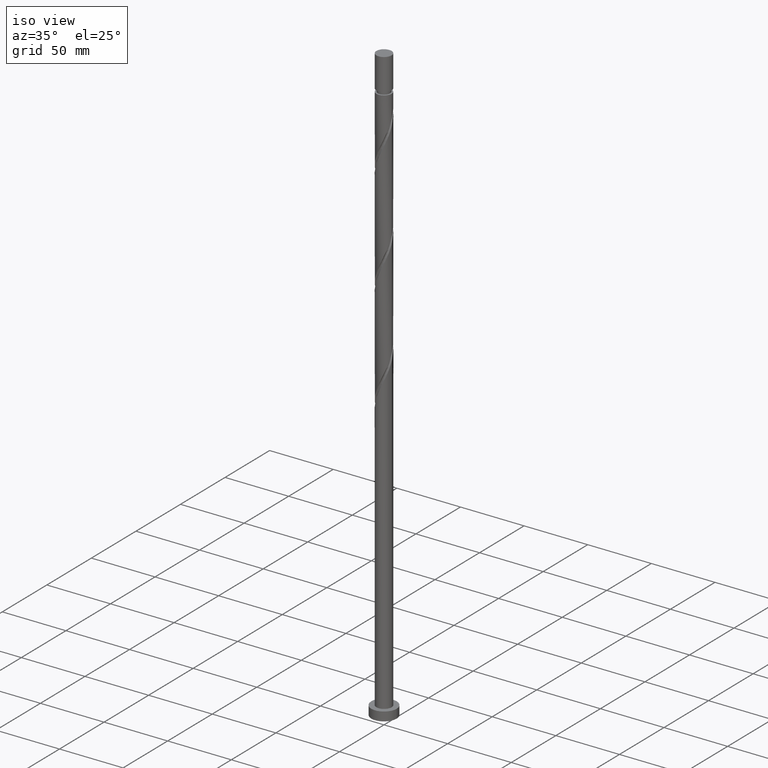
[diagram: clean part render]
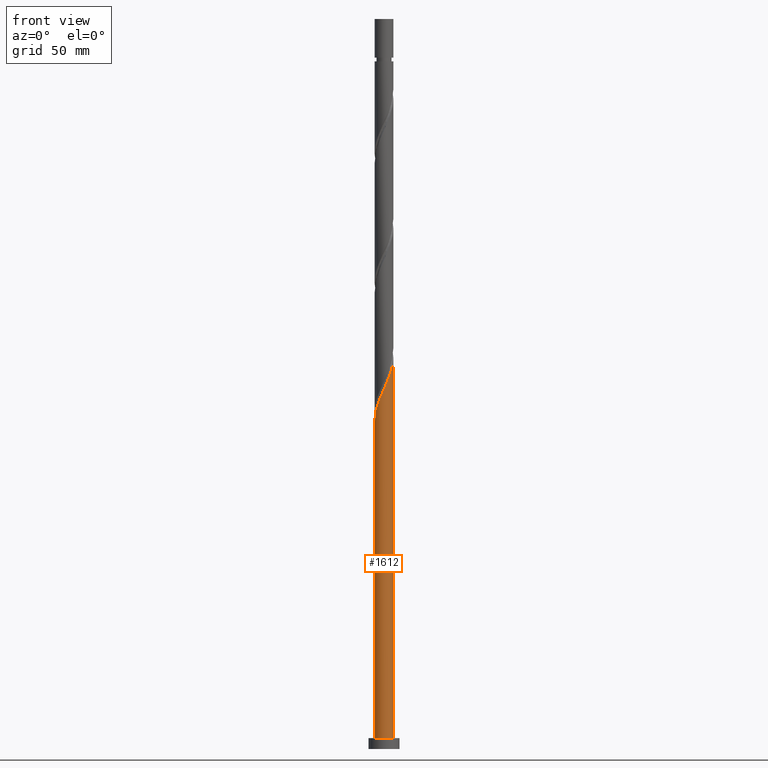
[diagram: tour spotlight — one face highlighted and labeled with its STEP entity id]
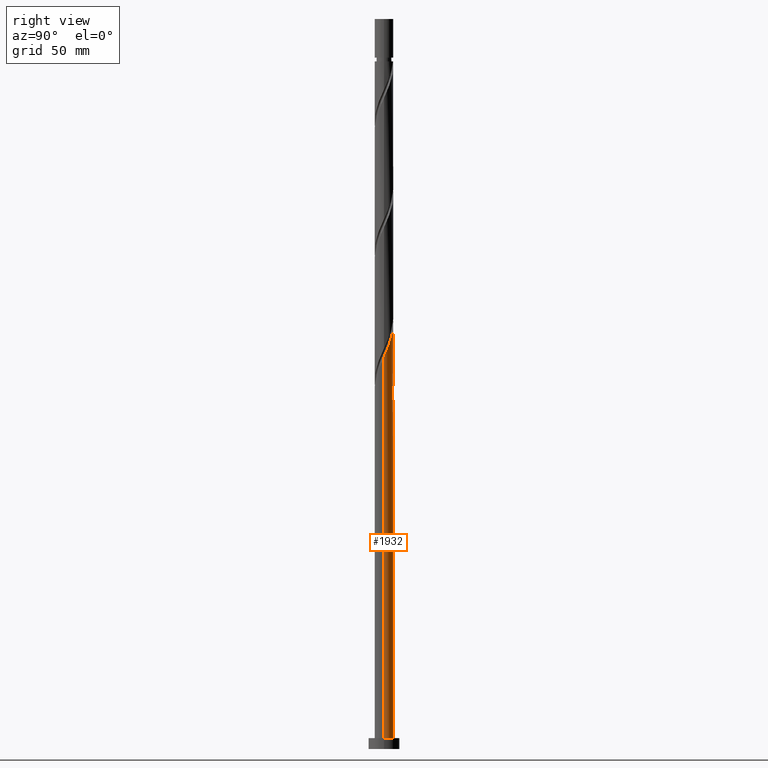
[diagram: tour spotlight — one face highlighted and labeled with its STEP entity id]
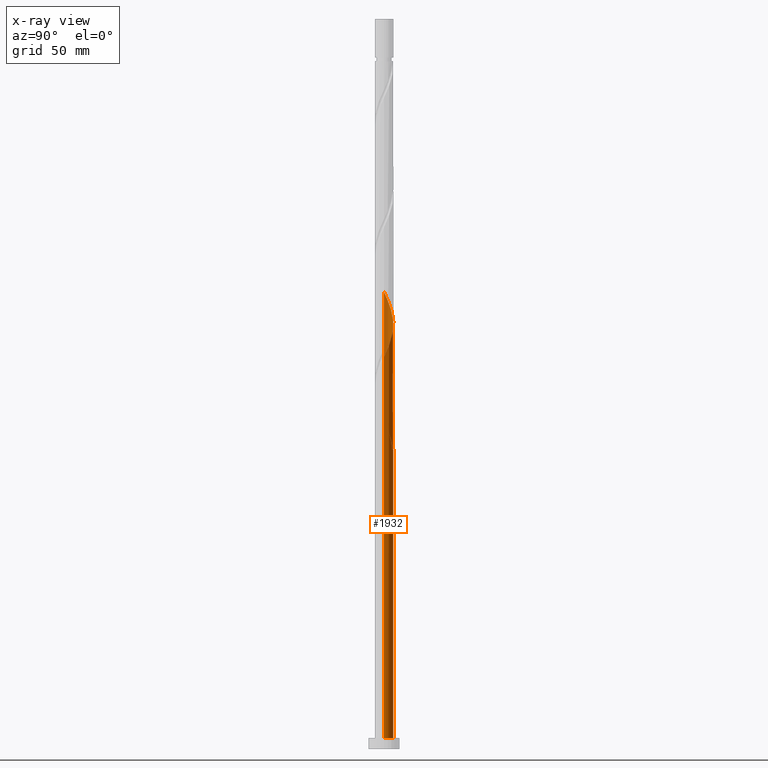
[diagram: x-ray of the same camera — body ghosted, this tour face saturated]
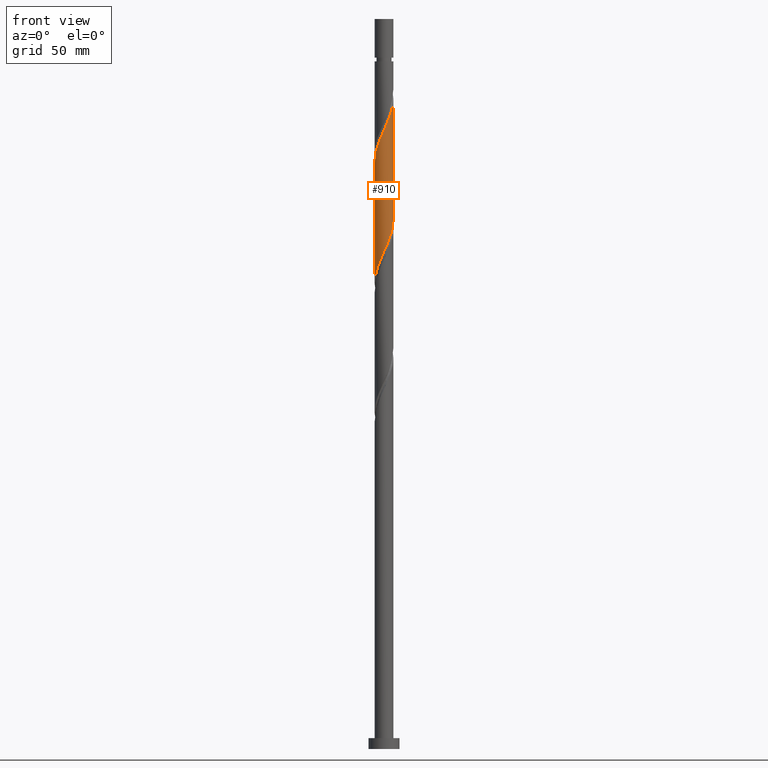
[diagram: tour spotlight — one face highlighted and labeled with its STEP entity id]
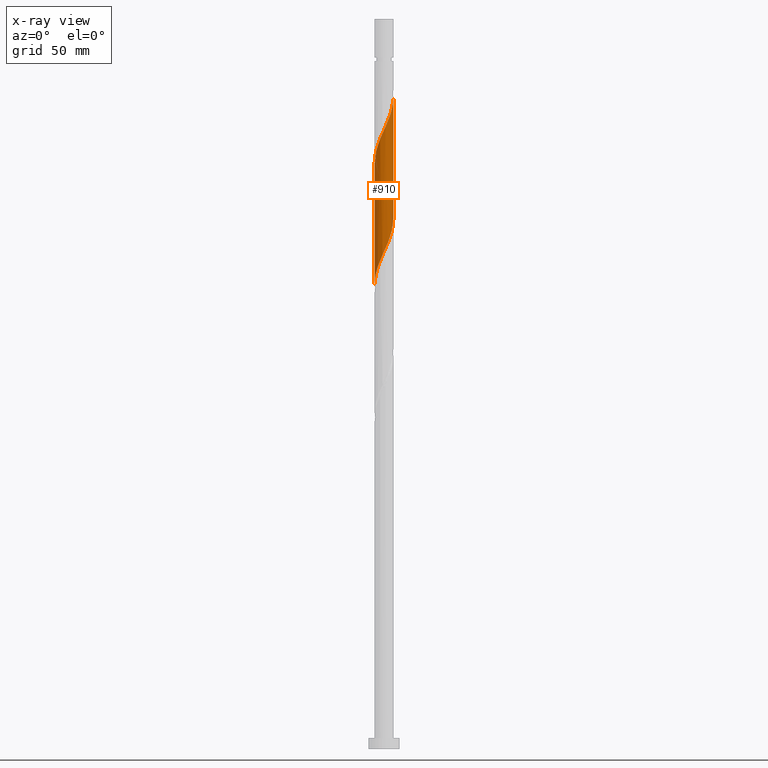
[diagram: x-ray of the same camera — body ghosted, this tour face saturated]
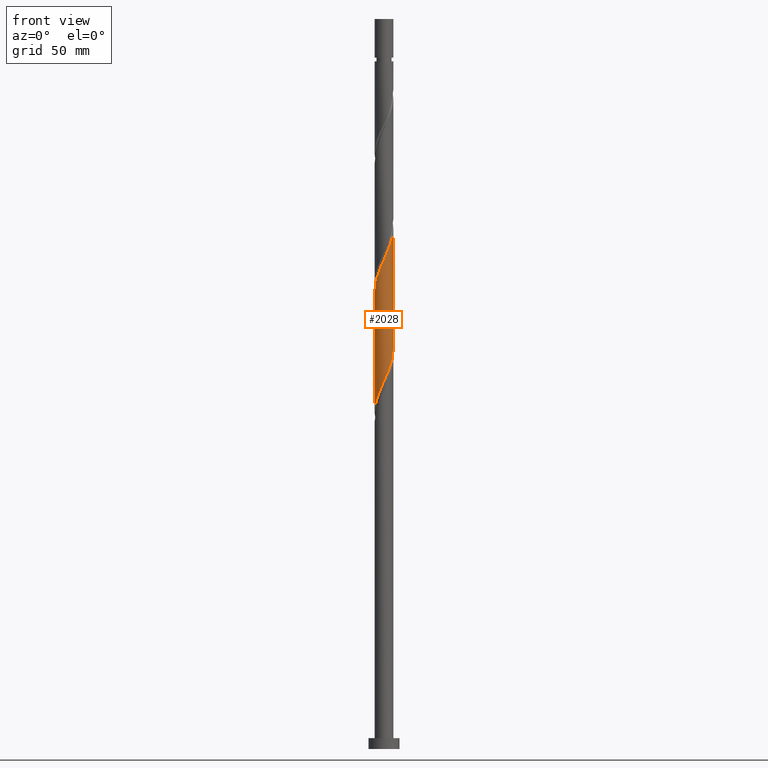
[diagram: tour spotlight — one face highlighted and labeled with its STEP entity id]
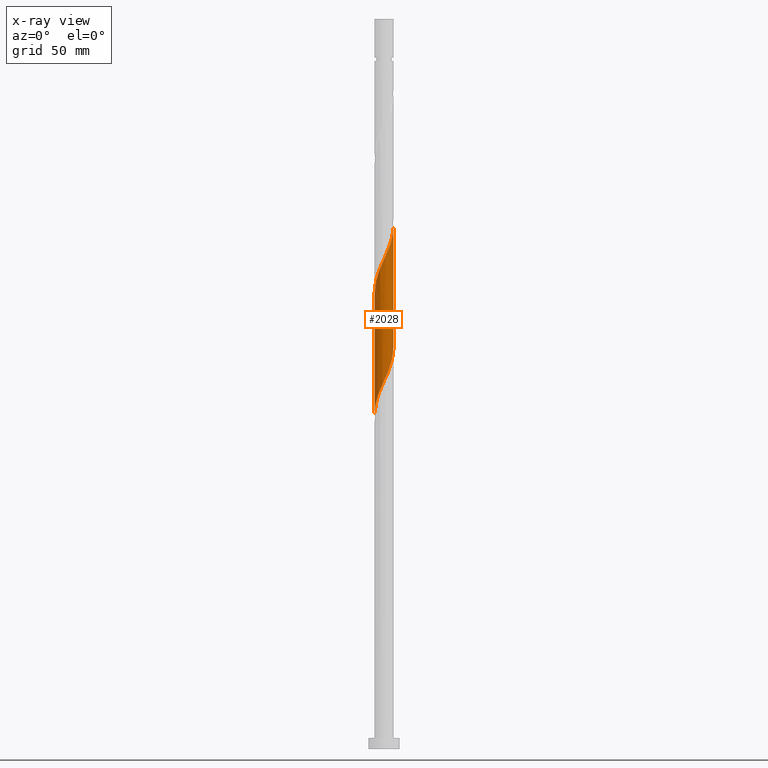
[diagram: x-ray of the same camera — body ghosted, this tour face saturated]
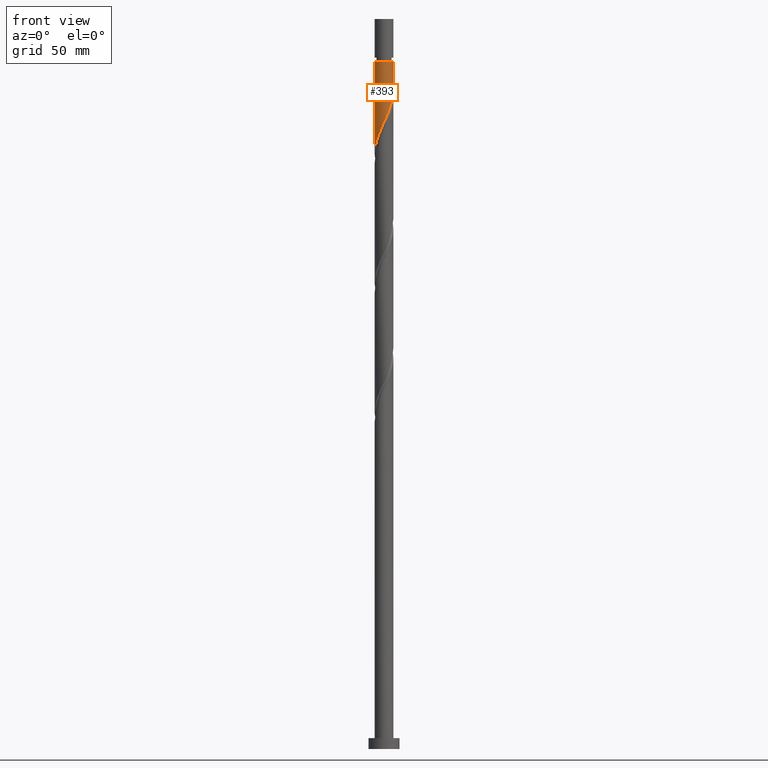
[diagram: tour spotlight — one face highlighted and labeled with its STEP entity id]
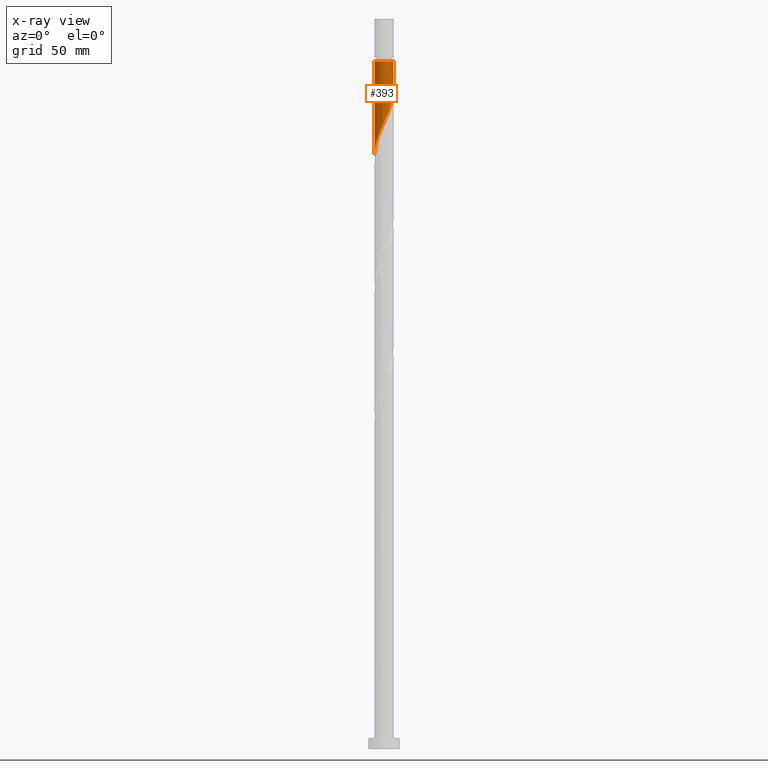
[diagram: x-ray of the same camera — body ghosted, this tour face saturated]
A machine part: a face-by-face anatomy tour. The part has 21 B-rep faces; the first image is the clean iso view, then the 5 largest visible faces are spotlighted one at a time (largest first), each with its STEP entity span.

Face 1 — front view, entity #1612. In plain terms, the highlighted cylindrical surface (edge-blend (fillet) strip) has radius 6 mm, axis along (-0, -0, -1).
Definition (entity closure, byte-faithful):
#84 = EDGE_CURVE ( 'NONE', #1246, #1939, #1824, .T. ) ;
#107 = AXIS2_PLACEMENT_3D ( 'NONE', #314, #966, #153 ) ;
#143 = CARTESIAN_POINT ( 'NONE',  ( 2.318173932455210640, -5.534082545362442929, 236.9834610473268697 ) ) ;
#153 = DIRECTION ( 'NONE',  ( -1.000000000000000000, 0.000000000000000000, 0.000000000000000000 ) ) ;
#159 = CARTESIAN_POINT ( 'NONE',  ( 4.675710161127276443, -3.806173212611419387, 243.4938777139934416 ) ) ;
#167 = ORIENTED_EDGE ( 'NONE', *, *, #1144, .F. ) ;
#183 = EDGE_LOOP ( 'NONE', ( #1686, #167, #790, #1086 ) ) ;
#260 = CARTESIAN_POINT ( 'NONE',  ( 0.000000000000000000, 0.000000000000000000, 7.000000000000000000 ) ) ;
#282 = CARTESIAN_POINT ( 'NONE',  ( -1.147080348408327177, -5.889329900276901064, 229.1709610473267844 ) ) ;
#312 = CARTESIAN_POINT ( 'NONE',  ( -6.000000000000010658, -0.01195592024555443104, 210.9154509571805249 ) ) ;
#314 = CARTESIAN_POINT ( 'NONE',  ( 0.000000000000000000, 0.000000000000000000, 470.0000000000000568 ) ) ;
#319 = CARTESIAN_POINT ( 'NONE',  ( -4.975493402055846559, -3.353276816205137401, 218.7542943806601272 ) ) ;
#373 = CARTESIAN_POINT ( 'NONE',  ( 6.000000000000000888, 7.347880794884120722E-16, 470.0000000000000568 ) ) ;
#384 = DIRECTION ( 'NONE',  ( 0.000000000000000000, 0.000000000000000000, 1.000000000000000000 ) ) ;
#394 = CARTESIAN_POINT ( 'NONE',  ( 6.000000000000000888, 7.347880794884120722E-16, 7.000000000000000000 ) ) ;
#437 = CARTESIAN_POINT ( 'NONE',  ( -3.806173212611419387, -4.675710161127277331, 222.6605443806601556 ) ) ;
#450 = CARTESIAN_POINT ( 'NONE',  ( 3.843320143767927632, -4.645224462582758562, 240.8897110473268128 ) ) ;
#459 = CARTESIAN_POINT ( 'NONE',  ( 4.259515152447602482, -4.225698837597090751, 242.1917943806601841 ) ) ;
#468 = CARTESIAN_POINT ( 'NONE',  ( 6.000000000000010658, -0.5788788895738872231, 251.2797839639139568 ) ) ;
#609 = CARTESIAN_POINT ( 'NONE',  ( -6.000000000000008882, 7.468366578327162994E-15, 210.8890974026632534 ) ) ;
#637 = CARTESIAN_POINT ( 'NONE',  ( -5.305762341528934556, -2.863233488642342728, 217.4522110473267276 ) ) ;
#783 = CARTESIAN_POINT ( 'NONE',  ( 1.773114376268075221, -5.762402749195952190, 235.6813777139933563 ) ) ;
#790 = ORIENTED_EDGE ( 'NONE', *, *, #1398, .T. ) ;
#799 = CARTESIAN_POINT ( 'NONE',  ( -4.225698837597090751, -4.259515152447602482, 221.3584610473267560 ) ) ;
#836 = VERTEX_POINT ( 'NONE', #1964 ) ;
#877 =( BOUNDED_CURVE ( )  B_SPLINE_CURVE ( 2, ( #609, #312, #1257, #1276, #2092, #1748, #1574, #637, #319, #1771, #799, #437, #973, #935, #1765, #954, #282, #1593, #1904, #1613, #1283, #783, #143, #1429, #1921, #450, #459, #159, #1913, #1411, #1120, #2072, #2053, #468, #1248 ),
 .UNSPECIFIED., .F., .T. ) 
 B_SPLINE_CURVE_WITH_KNOTS ( ( 3, 2, 2, 2, 2, 2, 2, 2, 2, 2, 2, 2, 2, 2, 2, 2, 2, 3 ),
 ( 0.05452869021808707389, 0.05468750000000000000, 0.06250000000000000000, 0.07031250000000000000, 0.07812500000000000000, 0.08593750000000000000, 0.09375000000000000000, 0.1015625000000000000, 0.1093750000000000000, 0.1171875000000000000, 0.1250000000000000000, 0.1328125000000000000, 0.1406250000000000000, 0.1484375000000000000, 0.1562500000000000000, 0.1640625000000000000, 0.1718750000000000000, 0.1795286902180872612 ),
 .UNSPECIFIED. ) 
 CURVE ( )  GEOMETRIC_REPRESENTATION_ITEM ( )  RATIONAL_B_SPLINE_CURVE ( ( 0.9089165573359456740, 0.9090019243628505441, 0.9090909090909424783, 0.9047133878838486964, 0.9090909090909424783, 0.9047133878838486964, 0.9090909090909424783, 0.9047133878838486964, 0.9090909090909424783, 0.9047133878838486964, 0.9090909090909424783, 0.9047133878838486964, 0.9090909090909424783, 0.9047133878838486964, 0.9090909090909424783, 0.9047133878838486964, 0.9090909090909424783, 0.9047133878838486964, 0.9090909090909424783, 0.9047133878838486964, 0.9090909090909424783, 0.9047133878838486964, 0.9090909090909424783, 0.9047133878838486964, 0.9090909090909424783, 0.9047133878838486964, 0.9090909090909424783, 0.9047133878838486964, 0.9090909090909424783, 0.9047133878838486964, 0.9090909090909424783, 0.9047133878838486964, 0.9090909090909424783, 0.9048023726119404087, 0.9089165573359460071 ) ) 
 REPRESENTATION_ITEM ( '' )  );
#894 = LINE ( 'NONE', #2033, #963 ) ;
#935 = CARTESIAN_POINT ( 'NONE',  ( -2.820852860605950863, -5.328415259162975204, 225.2647110473268128 ) ) ;
#954 = CARTESIAN_POINT ( 'NONE',  ( -1.727128715119907287, -5.776352346998740117, 227.8688777139934416 ) ) ;
#963 = VECTOR ( 'NONE', #1367, 1000.000000000000000 ) ;
#966 = DIRECTION ( 'NONE',  ( -0.000000000000000000, -0.000000000000000000, -1.000000000000000000 ) ) ;
#973 = CARTESIAN_POINT ( 'NONE',  ( -3.313513036608686235, -5.002062710145123603, 223.9626277139935269 ) ) ;
#1028 = LINE ( 'NONE', #373, #1364 ) ;
#1086 = ORIENTED_EDGE ( 'NONE', *, *, #84, .T. ) ;
#1120 = CARTESIAN_POINT ( 'NONE',  ( 5.552383803080859437, -2.273990787862929519, 247.4001277139934984 ) ) ;
#1144 = EDGE_CURVE ( 'NONE', #1901, #836, #877, .T. ) ;
#1195 = DIRECTION ( 'NONE',  ( 1.000000000000000000, 0.000000000000000000, 0.000000000000000000 ) ) ;
#1246 = VERTEX_POINT ( 'NONE', #1438 ) ;
#1248 = CARTESIAN_POINT ( 'NONE',  ( 6.000000000000010658, 7.166426127693521270E-15, 252.5557640693299959 ) ) ;
#1257 = CARTESIAN_POINT ( 'NONE',  ( -5.999952352179564130, -0.02391174554553763404, 210.9417943806601556 ) ) ;
#1276 = CARTESIAN_POINT ( 'NONE',  ( -5.997597250804064473, -0.6148554727878204895, 212.2438777139934416 ) ) ;
#1283 = CARTESIAN_POINT ( 'NONE',  ( 1.193984924527948133, -5.880000000000009663, 234.3792943806601272 ) ) ;
#1364 = VECTOR ( 'NONE', #1672, 1000.000000000000000 ) ;
#1367 = DIRECTION ( 'NONE',  ( -0.000000000000000000, -0.000000000000000000, -1.000000000000000000 ) ) ;
#1398 = EDGE_CURVE ( 'NONE', #1901, #1246, #894, .T. ) ;
#1411 = CARTESIAN_POINT ( 'NONE',  ( 5.328415259162972539, -2.820852860605953083, 246.0980443806600988 ) ) ;
#1429 = CARTESIAN_POINT ( 'NONE',  ( 2.863233488642342728, -5.305762341528934556, 238.2855443806601556 ) ) ;
#1438 = CARTESIAN_POINT ( 'NONE',  ( -6.000000000000000888, 0.000000000000000000, 7.000000000000000000 ) ) ;
#1574 = CARTESIAN_POINT ( 'NONE',  ( -5.534082545362442929, -2.318173932455209307, 216.1501277139934700 ) ) ;
#1593 = CARTESIAN_POINT ( 'NONE',  ( -0.5670319816967456239, -6.002307453555061123, 230.4730443806600988 ) ) ;
#1612 = ADVANCED_FACE ( 'NONE', ( #2075 ), #1930, .T. ) ;
#1613 = CARTESIAN_POINT ( 'NONE',  ( 0.6148554727878202675, -5.997597250804064473, 233.0772110473266991 ) ) ;
#1672 = DIRECTION ( 'NONE',  ( -0.000000000000000000, -0.000000000000000000, -1.000000000000000000 ) ) ;
#1686 = ORIENTED_EDGE ( 'NONE', *, *, #1711, .F. ) ;
#1691 = AXIS2_PLACEMENT_3D ( 'NONE', #260, #384, #1195 ) ;
#1711 = EDGE_CURVE ( 'NONE', #836, #1939, #1028, .T. ) ;
#1715 = CARTESIAN_POINT ( 'NONE',  ( -6.000000000000009770, 7.468366578327162994E-15, 210.8890974026632534 ) ) ;
#1748 = CARTESIAN_POINT ( 'NONE',  ( -5.762402749195952190, -1.773114376268075221, 214.8480443806600988 ) ) ;
#1765 = CARTESIAN_POINT ( 'NONE',  ( -2.273990787862929519, -5.552383803080861213, 226.5667943806601556 ) ) ;
#1771 = CARTESIAN_POINT ( 'NONE',  ( -4.645224462582758562, -3.843320143767927632, 220.0563777139934132 ) ) ;
#1824 = CIRCLE ( 'NONE', #1691, 6.000000000000000888 ) ;
#1901 = VERTEX_POINT ( 'NONE', #1715 ) ;
#1904 = CARTESIAN_POINT ( 'NONE',  ( 0.02391174554553593054, -5.999952352179564130, 231.7751277139934700 ) ) ;
#1913 = CARTESIAN_POINT ( 'NONE',  ( 5.002062710145125379, -3.313513036608687123, 244.7959610473268128 ) ) ;
#1921 = CARTESIAN_POINT ( 'NONE',  ( 3.353276816205136956, -4.975493402055847447, 239.5876277139935269 ) ) ;
#1930 = CYLINDRICAL_SURFACE ( 'NONE', #107, 6.000000000000000888 ) ;
#1939 = VERTEX_POINT ( 'NONE', #394 ) ;
#1964 = CARTESIAN_POINT ( 'NONE',  ( 6.000000000000010658, 7.166426127693521270E-15, 252.5557640693299959 ) ) ;
#2033 = CARTESIAN_POINT ( 'NONE',  ( -6.000000000000000888, 0.000000000000000000, 470.0000000000000568 ) ) ;
#2053 = CARTESIAN_POINT ( 'NONE',  ( 5.889329900276901064, -1.147080348408329620, 250.0042943806601841 ) ) ;
#2072 = CARTESIAN_POINT ( 'NONE',  ( 5.776352346998740117, -1.727128715119907731, 248.7022110473268128 ) ) ;
#2075 = FACE_OUTER_BOUND ( 'NONE', #183, .T. ) ;
#2092 = CARTESIAN_POINT ( 'NONE',  ( -5.880000000000009663, -1.193984924527948355, 213.5459610473268413 ) ) ;

Face 2 — right view, entity #1932. An x-ray twin of the same camera follows (body ghosted, this face saturated) — the face is partly hidden behind the body. In plain terms, the highlighted cylindrical surface (edge-blend (fillet) strip) has radius 6 mm, axis along (-0, -0, -1).
Definition (entity closure, byte-faithful):
#7 = ORIENTED_EDGE ( 'NONE', *, *, #1398, .F. ) ;
#15 = CARTESIAN_POINT ( 'NONE',  ( -6.000000000000001776, 0.01195592024557011294, 216.1764711374730439 ) ) ;
#64 = CARTESIAN_POINT ( 'NONE',  ( -6.000000000000000888, 0.000000000000000000, 470.0000000000000568 ) ) ;
#65 = CARTESIAN_POINT ( 'NONE',  ( 3.313513036608687123, 5.002062710145125379, 265.6292943806601556 ) ) ;
#93 = CARTESIAN_POINT ( 'NONE',  ( -3.313513036608680018, 5.002062710145120050, 203.1292943806601272 ) ) ;
#103 = CARTESIAN_POINT ( 'NONE',  ( 1.193984924527949243, 5.880000000000001670, 192.7126277139934416 ) ) ;
#113 = CARTESIAN_POINT ( 'NONE',  ( -5.328415259162974316, 2.820852860605950863, 287.7647110473267276 ) ) ;
#116 = CARTESIAN_POINT ( 'NONE',  ( -2.273990787862925522, 5.552383803080852331, 200.5251277139934416 ) ) ;
#125 = CARTESIAN_POINT ( 'NONE',  ( -4.259515152447603370, 4.225698837597089863, 200.5251277139934700 ) ) ;
#151 =( BOUNDED_CURVE ( )  B_SPLINE_CURVE ( 2, ( #1472, #15, #667, #1312, #1955, #999, #185, #440, #1556, #1567, #734, #1051, #93, #2047, #116, #557, #251, #1063, #1404, #592, #103 ),
 .UNSPECIFIED., .F., .T. ) 
 B_SPLINE_CURVE_WITH_KNOTS ( ( 3, 2, 2, 2, 2, 2, 2, 2, 2, 2, 3 ),
 ( 0.9295286902180872612, 0.9296875000000000000, 0.9375000000000000000, 0.9453125000000000000, 0.9531250000000000000, 0.9609375000000000000, 0.9687500000000000000, 0.9765625000000000000, 0.9843750000000000000, 0.9921875000000000000, 1.000000000000000000 ),
 .UNSPECIFIED. ) 
 CURVE ( )  GEOMETRIC_REPRESENTATION_ITEM ( )  RATIONAL_B_SPLINE_CURVE ( ( 0.9089165573359409001, 0.9090019243628456591, 0.9090909090909373713, 0.9047133878838434784, 0.9090909090909373713, 0.9047133878838434784, 0.9090909090909373713, 0.9047133878838434784, 0.9090909090909373713, 0.9047133878838434784, 0.9090909090909373713, 0.9047133878838434784, 0.9090909090909373713, 0.9047133878838434784, 0.9090909090909373713, 0.9047133878838434784, 0.9090909090909373713, 0.9047133878838434784, 0.9090909090909373713, 0.9047133878838434784, 0.9090909090909373713 ) ) 
 REPRESENTATION_ITEM ( '' )  );
#170 = CARTESIAN_POINT ( 'NONE',  ( -6.000000000000000888, 1.084189877367839839E-14, 216.2028246919902585 ) ) ;
#185 = CARTESIAN_POINT ( 'NONE',  ( -5.534082545362434047, 2.318173932455208419, 210.9417943806601272 ) ) ;
#191 = CARTESIAN_POINT ( 'NONE',  ( -1.193984924527947244, 5.880000000000009663, 192.7126277139934416 ) ) ;
#192 = DIRECTION ( 'NONE',  ( 0.000000000000000000, -0.000000000000000000, -1.000000000000000000 ) ) ;
#195 = VERTEX_POINT ( 'NONE', #851 ) ;
#199 = EDGE_CURVE ( 'NONE', #1939, #1246, #744, .T. ) ;
#224 = CARTESIAN_POINT ( 'NONE',  ( -5.552383803080859437, 2.273990787862931295, 289.0667943806601556 ) ) ;
#234 = CARTESIAN_POINT ( 'NONE',  ( 5.762402749195953966, 1.773114376268072778, 256.5147110473267844 ) ) ;
#247 = CARTESIAN_POINT ( 'NONE',  ( 4.225698837597090751, 4.259515152447600705, 263.0251277139935269 ) ) ;
#251 = CARTESIAN_POINT ( 'NONE',  ( -1.147080348408323625, 5.889329900276893959, 197.9209610473267560 ) ) ;
#256 = LINE ( 'NONE', #64, #1126 ) ;
#272 = CARTESIAN_POINT ( 'NONE',  ( -5.002062710145125379, 3.313513036608686235, 286.4626277139935837 ) ) ;
#328 = EDGE_CURVE ( 'NONE', #721, #1927, #151, .T. ) ;
#354 = CARTESIAN_POINT ( 'NONE',  ( 0.000000000000000000, 0.000000000000000000, 192.7126277139934984 ) ) ;
#373 = CARTESIAN_POINT ( 'NONE',  ( 6.000000000000000888, 7.347880794884120722E-16, 470.0000000000000568 ) ) ;
#394 = CARTESIAN_POINT ( 'NONE',  ( 6.000000000000000888, 7.347880794884120722E-16, 7.000000000000000000 ) ) ;
#404 = CARTESIAN_POINT ( 'NONE',  ( 4.975493402055846559, 3.353276816205138289, 260.4209610473268981 ) ) ;
#417 = CARTESIAN_POINT ( 'NONE',  ( -3.353276816205137401, 4.975493402055846559, 281.2542943806602693 ) ) ;
#427 = CARTESIAN_POINT ( 'NONE',  ( 1.147080348408330286, 5.889329900276901064, 270.8376277139935269 ) ) ;
#440 = CARTESIAN_POINT ( 'NONE',  ( -5.305762341528927450, 2.863233488642340951, 209.6397110473268128 ) ) ;
#470 = CARTESIAN_POINT ( 'NONE',  ( -6.000000000000008882, 7.468366578327162994E-15, 210.8890974026632534 ) ) ;
#537 = DIRECTION ( 'NONE',  ( 0.000000000000000000, 0.000000000000000000, 1.000000000000000000 ) ) ;
#553 = CARTESIAN_POINT ( 'NONE',  ( -5.889329900276901064, 1.147080348408326733, 291.6709610473268981 ) ) ;
#557 = CARTESIAN_POINT ( 'NONE',  ( -1.727128715119903291, 5.776352346998733012, 199.2230443806601556 ) ) ;
#565 = CARTESIAN_POINT ( 'NONE',  ( 5.999952352179564130, 0.02391174554553549686, 252.6084610473267844 ) ) ;
#576 = CARTESIAN_POINT ( 'NONE',  ( -2.318173932455209751, 5.534082545362442929, 278.6501277139934132 ) ) ;
#582 = AXIS2_PLACEMENT_3D ( 'NONE', #354, #192, #846 ) ;
#586 = CARTESIAN_POINT ( 'NONE',  ( 0.000000000000000000, 0.000000000000000000, 470.0000000000000568 ) ) ;
#589 = CARTESIAN_POINT ( 'NONE',  ( -3.843320143767927632, 4.645224462582758562, 282.5563777139934132 ) ) ;
#592 = CARTESIAN_POINT ( 'NONE',  ( 0.6148554727878217108, 5.997597250804057367, 194.0147110473268128 ) ) ;
#599 = CARTESIAN_POINT ( 'NONE',  ( -6.000000000000008882, 7.468366578327162994E-15, 294.2224307359965110 ) ) ;
#630 = CARTESIAN_POINT ( 'NONE',  ( -6.000000000000002665, 0.5788788895739191975, 292.9464506305805003 ) ) ;
#631 = CARTESIAN_POINT ( 'NONE',  ( -5.002062710145125379, 3.313513036608686235, 203.1292943806601841 ) ) ;
#639 = CARTESIAN_POINT ( 'NONE',  ( -1.193984924527947467, 5.880000000000009663, 192.7126277139934132 ) ) ;
#667 = CARTESIAN_POINT ( 'NONE',  ( -5.999952352179554360, 0.02391174554553919182, 216.1501277139934132 ) ) ;
#718 = CARTESIAN_POINT ( 'NONE',  ( -5.776352346998740117, 1.727128715119907287, 290.3688777139932427 ) ) ;
#721 = VERTEX_POINT ( 'NONE', #170 ) ;
#722 = AXIS2_PLACEMENT_3D ( 'NONE', #586, #1408, #1530 ) ;
#734 = CARTESIAN_POINT ( 'NONE',  ( -4.225698837597083646, 4.259515152447598041, 205.7334610473267560 ) ) ;
#744 = CIRCLE ( 'NONE', #1920, 6.000000000000000888 ) ;
#753 = CARTESIAN_POINT ( 'NONE',  ( 6.000000000000010658, 7.166426127693521270E-15, 252.5557640693299959 ) ) ;
#798 =( BOUNDED_CURVE ( )  B_SPLINE_CURVE ( 2, ( #753, #1860, #565, #1694, #2031, #234, #891, #1882, #404, #1078, #247, #1533, #65, #1400, #2044, #1850, #427, #1683, #1388, #2010, #1998, #925, #576, #1214, #417, #589, #1729, #1563, #272, #113, #224, #718, #553, #630, #599 ),
 .UNSPECIFIED., .F., .T. ) 
 B_SPLINE_CURVE_WITH_KNOTS ( ( 3, 2, 2, 2, 2, 2, 2, 2, 2, 2, 2, 2, 2, 2, 2, 2, 2, 3 ),
 ( 0.1795286902180872612, 0.1796875000000000000, 0.1875000000000000000, 0.1953125000000000000, 0.2031250000000000000, 0.2109375000000000000, 0.2187500000000000000, 0.2265625000000000000, 0.2343750000000000000, 0.2421875000000000000, 0.2500000000000000000, 0.2578125000000000000, 0.2656250000000000000, 0.2734375000000000000, 0.2812500000000000000, 0.2890625000000000000, 0.2968750000000000000, 0.3045286902180868172 ),
 .UNSPECIFIED. ) 
 CURVE ( )  GEOMETRIC_REPRESENTATION_ITEM ( )  RATIONAL_B_SPLINE_CURVE ( ( 0.9089165573359460071, 0.9090019243628507661, 0.9090909090909424783, 0.9047133878838486964, 0.9090909090909424783, 0.9047133878838486964, 0.9090909090909424783, 0.9047133878838486964, 0.9090909090909424783, 0.9047133878838486964, 0.9090909090909424783, 0.9047133878838486964, 0.9090909090909424783, 0.9047133878838486964, 0.9090909090909424783, 0.9047133878838486964, 0.9090909090909424783, 0.9047133878838486964, 0.9090909090909424783, 0.9047133878838486964, 0.9090909090909424783, 0.9047133878838486964, 0.9090909090909424783, 0.9047133878838486964, 0.9090909090909424783, 0.9047133878838486964, 0.9090909090909424783, 0.9047133878838486964, 0.9090909090909424783, 0.9047133878838486964, 0.9090909090909424783, 0.9047133878838486964, 0.9090909090909424783, 0.9048023726119407417, 0.9089165573359454520 ) ) 
 REPRESENTATION_ITEM ( '' )  );
#818 = EDGE_LOOP ( 'NONE', ( #1298, #1327, #1454, #7, #1291, #1482, #1653, #830 ) ) ;
#830 = ORIENTED_EDGE ( 'NONE', *, *, #1959, .F. ) ;
#836 = VERTEX_POINT ( 'NONE', #1964 ) ;
#838 = EDGE_CURVE ( 'NONE', #1659, #1927, #2103, .T. ) ;
#846 = DIRECTION ( 'NONE',  ( -1.000000000000000000, 0.000000000000000000, 0.000000000000000000 ) ) ;
#851 = CARTESIAN_POINT ( 'NONE',  ( -6.000000000000009770, 7.468366578327162994E-15, 294.2224307359965110 ) ) ;
#891 = CARTESIAN_POINT ( 'NONE',  ( 5.534082545362442929, 2.318173932455209751, 257.8167943806601556 ) ) ;
#894 = LINE ( 'NONE', #2033, #963 ) ;
#925 = CARTESIAN_POINT ( 'NONE',  ( -1.773114376268075221, 5.762402749195952190, 277.3480443806601556 ) ) ;
#936 = CARTESIAN_POINT ( 'NONE',  ( -1.773114376268075221, 5.762402749195952190, 194.0147110473267560 ) ) ;
#946 = CARTESIAN_POINT ( 'NONE',  ( -2.318173932455209751, 5.534082545362442929, 195.3167943806601272 ) ) ;
#956 = CARTESIAN_POINT ( 'NONE',  ( -3.353276816205137401, 4.975493402055846559, 197.9209610473267844 ) ) ;
#963 = VECTOR ( 'NONE', #1367, 1000.000000000000000 ) ;
#999 = CARTESIAN_POINT ( 'NONE',  ( -5.762402749195945972, 1.773114376268074333, 212.2438777139934132 ) ) ;
#1028 = LINE ( 'NONE', #373, #1364 ) ;
#1051 = CARTESIAN_POINT ( 'NONE',  ( -3.806173212611412282, 4.675710161127272002, 204.4313777139934700 ) ) ;
#1055 = CYLINDRICAL_SURFACE ( 'NONE', #722, 6.000000000000000888 ) ;
#1063 = CARTESIAN_POINT ( 'NONE',  ( -0.5670319816967441806, 6.002307453555054906, 196.6188777139934416 ) ) ;
#1078 = CARTESIAN_POINT ( 'NONE',  ( 4.645224462582758562, 3.843320143767927188, 261.7230443806601556 ) ) ;
#1097 = EDGE_CURVE ( 'NONE', #836, #195, #798, .T. ) ;
#1113 = CARTESIAN_POINT ( 'NONE',  ( -5.552383803080859437, 2.273990787862931295, 205.7334610473268128 ) ) ;
#1126 = VECTOR ( 'NONE', #1223, 1000.000000000000000 ) ;
#1138 = CARTESIAN_POINT ( 'NONE',  ( -2.863233488642343616, 5.305762341528934556, 196.6188777139934132 ) ) ;
#1190 = DIRECTION ( 'NONE',  ( 1.000000000000000000, 0.000000000000000000, 0.000000000000000000 ) ) ;
#1214 = CARTESIAN_POINT ( 'NONE',  ( -2.863233488642343616, 5.305762341528934556, 279.9522110473267844 ) ) ;
#1223 = DIRECTION ( 'NONE',  ( -0.000000000000000000, -0.000000000000000000, -1.000000000000000000 ) ) ;
#1246 = VERTEX_POINT ( 'NONE', #1438 ) ;
#1268 = CARTESIAN_POINT ( 'NONE',  ( -6.000000000000007994, 0.5788788895739003237, 209.6131172972472143 ) ) ;
#1277 = CARTESIAN_POINT ( 'NONE',  ( -5.889329900276901064, 1.147080348408326733, 208.3376277139934984 ) ) ;
#1291 = ORIENTED_EDGE ( 'NONE', *, *, #1560, .F. ) ;
#1298 = ORIENTED_EDGE ( 'NONE', *, *, #1097, .F. ) ;
#1312 = CARTESIAN_POINT ( 'NONE',  ( -5.997597250804057367, 0.6148554727878215997, 214.8480443806601556 ) ) ;
#1327 = ORIENTED_EDGE ( 'NONE', *, *, #1711, .T. ) ;
#1364 = VECTOR ( 'NONE', #1672, 1000.000000000000000 ) ;
#1367 = DIRECTION ( 'NONE',  ( -0.000000000000000000, -0.000000000000000000, -1.000000000000000000 ) ) ;
#1388 = CARTESIAN_POINT ( 'NONE',  ( -0.02391174554553508053, 5.999952352179564130, 273.4417943806601556 ) ) ;
#1398 = EDGE_CURVE ( 'NONE', #1901, #1246, #894, .T. ) ;
#1400 = CARTESIAN_POINT ( 'NONE',  ( 2.820852860605953083, 5.328415259162971651, 266.9313777139934132 ) ) ;
#1404 = CARTESIAN_POINT ( 'NONE',  ( 0.02391174554553877549, 5.999952352179554360, 195.3167943806600704 ) ) ;
#1408 = DIRECTION ( 'NONE',  ( -0.000000000000000000, -0.000000000000000000, -1.000000000000000000 ) ) ;
#1430 = CARTESIAN_POINT ( 'NONE',  ( -5.776352346998740117, 1.727128715119907287, 207.0355443806600988 ) ) ;
#1438 = CARTESIAN_POINT ( 'NONE',  ( -6.000000000000000888, 0.000000000000000000, 7.000000000000000000 ) ) ;
#1439 = CARTESIAN_POINT ( 'NONE',  ( -3.843320143767927632, 4.645224462582758562, 199.2230443806600988 ) ) ;
#1454 = ORIENTED_EDGE ( 'NONE', *, *, #199, .T. ) ;
#1472 = CARTESIAN_POINT ( 'NONE',  ( -6.000000000000000888, 1.084189877367839682E-14, 216.2028246919902585 ) ) ;
#1482 = ORIENTED_EDGE ( 'NONE', *, *, #838, .T. ) ;
#1518 = FACE_OUTER_BOUND ( 'NONE', #818, .T. ) ;
#1530 = DIRECTION ( 'NONE',  ( -1.000000000000000000, 0.000000000000000000, 0.000000000000000000 ) ) ;
#1533 = CARTESIAN_POINT ( 'NONE',  ( 3.806173212611417611, 4.675710161127278219, 264.3272110473267844 ) ) ;
#1556 = CARTESIAN_POINT ( 'NONE',  ( -4.975493402055838565, 3.353276816205132072, 208.3376277139934132 ) ) ;
#1560 = EDGE_CURVE ( 'NONE', #1659, #1901, #1873, .T. ) ;
#1563 = CARTESIAN_POINT ( 'NONE',  ( -4.675710161127277331, 3.806173212611418499, 285.1605443806601556 ) ) ;
#1567 = CARTESIAN_POINT ( 'NONE',  ( -4.645224462582750569, 3.843320143767924524, 207.0355443806601272 ) ) ;
#1653 = ORIENTED_EDGE ( 'NONE', *, *, #328, .F. ) ;
#1659 = VERTEX_POINT ( 'NONE', #191 ) ;
#1672 = DIRECTION ( 'NONE',  ( -0.000000000000000000, -0.000000000000000000, -1.000000000000000000 ) ) ;
#1682 = CARTESIAN_POINT ( 'NONE',  ( 1.193984924527949243, 5.880000000000001670, 192.7126277139934416 ) ) ;
#1683 = CARTESIAN_POINT ( 'NONE',  ( 0.5670319816967465121, 6.002307453555062011, 272.1397110473268413 ) ) ;
#1694 = CARTESIAN_POINT ( 'NONE',  ( 5.997597250804064473, 0.6148554727878225989, 253.9105443806600704 ) ) ;
#1711 = EDGE_CURVE ( 'NONE', #836, #1939, #1028, .T. ) ;
#1715 = CARTESIAN_POINT ( 'NONE',  ( -6.000000000000009770, 7.468366578327162994E-15, 210.8890974026632534 ) ) ;
#1729 = CARTESIAN_POINT ( 'NONE',  ( -4.259515152447603370, 4.225698837597089863, 283.8584610473268981 ) ) ;
#1766 = CARTESIAN_POINT ( 'NONE',  ( -5.328415259162974316, 2.820852860605950863, 204.4313777139934700 ) ) ;
#1796 = CARTESIAN_POINT ( 'NONE',  ( 0.000000000000000000, 0.000000000000000000, 7.000000000000000000 ) ) ;
#1850 = CARTESIAN_POINT ( 'NONE',  ( 1.727128715119907731, 5.776352346998739229, 269.5355443806600988 ) ) ;
#1860 = CARTESIAN_POINT ( 'NONE',  ( 6.000000000000010658, 0.01195592024556642492, 252.5821176238472390 ) ) ;
#1873 =( BOUNDED_CURVE ( )  B_SPLINE_CURVE ( 2, ( #639, #936, #946, #1138, #956, #1439, #125, #1922, #631, #1766, #1113, #1430, #1277, #1268, #470 ),
 .UNSPECIFIED., .F., .T. ) 
 B_SPLINE_CURVE_WITH_KNOTS ( ( 3, 2, 2, 2, 2, 2, 2, 3 ),
 ( 0.000000000000000000, 0.007812500000000000000, 0.01562500000000000000, 0.02343750000000000000, 0.03125000000000000000, 0.03906250000000000000, 0.04687500000000000000, 0.05452869021808707389 ),
 .UNSPECIFIED. ) 
 CURVE ( )  GEOMETRIC_REPRESENTATION_ITEM ( )  RATIONAL_B_SPLINE_CURVE ( ( 0.9090909090909424783, 0.9047133878838486964, 0.9090909090909424783, 0.9047133878838486964, 0.9090909090909424783, 0.9047133878838486964, 0.9090909090909424783, 0.9047133878838486964, 0.9090909090909424783, 0.9047133878838486964, 0.9090909090909424783, 0.9047133878838486964, 0.9090909090909424783, 0.9048023726119406307, 0.9089165573359456740 ) ) 
 REPRESENTATION_ITEM ( '' )  );
#1882 = CARTESIAN_POINT ( 'NONE',  ( 5.305762341528934556, 2.863233488642342284, 259.1188777139934700 ) ) ;
#1901 = VERTEX_POINT ( 'NONE', #1715 ) ;
#1920 = AXIS2_PLACEMENT_3D ( 'NONE', #1796, #537, #1190 ) ;
#1922 = CARTESIAN_POINT ( 'NONE',  ( -4.675710161127277331, 3.806173212611418499, 201.8272110473267560 ) ) ;
#1927 = VERTEX_POINT ( 'NONE', #1682 ) ;
#1932 = ADVANCED_FACE ( 'NONE', ( #1518 ), #1055, .T. ) ;
#1939 = VERTEX_POINT ( 'NONE', #394 ) ;
#1955 = CARTESIAN_POINT ( 'NONE',  ( -5.880000000000000782, 1.193984924527948133, 213.5459610473267560 ) ) ;
#1959 = EDGE_CURVE ( 'NONE', #195, #721, #256, .T. ) ;
#1964 = CARTESIAN_POINT ( 'NONE',  ( 6.000000000000010658, 7.166426127693521270E-15, 252.5557640693299959 ) ) ;
#1998 = CARTESIAN_POINT ( 'NONE',  ( -1.193984924527947022, 5.880000000000009663, 276.0459610473268413 ) ) ;
#2010 = CARTESIAN_POINT ( 'NONE',  ( -0.6148554727878222659, 5.997597250804064473, 274.7438777139934700 ) ) ;
#2031 = CARTESIAN_POINT ( 'NONE',  ( 5.880000000000009663, 1.193984924527947467, 255.2126277139934984 ) ) ;
#2033 = CARTESIAN_POINT ( 'NONE',  ( -6.000000000000000888, 0.000000000000000000, 470.0000000000000568 ) ) ;
#2044 = CARTESIAN_POINT ( 'NONE',  ( 2.273990787862929519, 5.552383803080859437, 268.2334610473268981 ) ) ;
#2047 = CARTESIAN_POINT ( 'NONE',  ( -2.820852860605946866, 5.328415259162967210, 201.8272110473267844 ) ) ;
#2103 = CIRCLE ( 'NONE', #582, 6.000000000000000888 ) ;

Face 3 — front view, entity #910. An x-ray twin of the same camera follows (body ghosted, this face saturated) — the face is partly hidden behind the body. In plain terms, the highlighted cylindrical surface (edge-blend (fillet) strip) has radius 6 mm, axis along (-0, -0, -1).
Definition (entity closure, byte-faithful):
#9 = CARTESIAN_POINT ( 'NONE',  ( 5.889329900276901064, -1.147080348408329620, 416.6709610473268413 ) ) ;
#31 = CARTESIAN_POINT ( 'NONE',  ( 2.318173932455210640, -5.534082545362442929, 403.6501277139935837 ) ) ;
#42 = CARTESIAN_POINT ( 'NONE',  ( 6.000000000000014211, -0.5788788895738621321, 417.9464506305806140 ) ) ;
#127 = CARTESIAN_POINT ( 'NONE',  ( -5.776352346998733012, -1.727128715119903291, 303.3897110473268413 ) ) ;
#130 =( BOUNDED_CURVE ( )  B_SPLINE_CURVE ( 2, ( #1447, #160, #811, #1457, #2101, #1258, #1596, #649, #1941, #1906, #487, #1102, #294, #1759, #541, #353, #845, #1624, #1330, #1489, #519, #331, #31, #707, #1148, #1782, #1174, #1976, #984, #202, #685, #169, #9, #42, #695 ),
 .UNSPECIFIED., .F., .T. ) 
 B_SPLINE_CURVE_WITH_KNOTS ( ( 3, 2, 2, 2, 2, 2, 2, 2, 2, 2, 2, 2, 2, 2, 2, 2, 2, 3 ),
 ( 0.5545286902180871502, 0.5546875000000000000, 0.5625000000000000000, 0.5703125000000000000, 0.5781250000000000000, 0.5859375000000000000, 0.5937500000000000000, 0.6015625000000000000, 0.6093750000000000000, 0.6171875000000000000, 0.6250000000000000000, 0.6328125000000000000, 0.6406250000000000000, 0.6484375000000000000, 0.6562500000000000000, 0.6640625000000000000, 0.6718750000000000000, 0.6795286902180875943 ),
 .UNSPECIFIED. ) 
 CURVE ( )  GEOMETRIC_REPRESENTATION_ITEM ( )  RATIONAL_B_SPLINE_CURVE ( ( 0.9089165573359458961, 0.9090019243628506551, 0.9090909090909424783, 0.9047133878838486964, 0.9090909090909424783, 0.9047133878838486964, 0.9090909090909424783, 0.9047133878838486964, 0.9090909090909424783, 0.9047133878838486964, 0.9090909090909424783, 0.9047133878838486964, 0.9090909090909424783, 0.9047133878838486964, 0.9090909090909424783, 0.9047133878838486964, 0.9090909090909424783, 0.9047133878838486964, 0.9090909090909424783, 0.9047133878838486964, 0.9090909090909424783, 0.9047133878838486964, 0.9090909090909424783, 0.9047133878838486964, 0.9090909090909424783, 0.9047133878838486964, 0.9090909090909424783, 0.9047133878838486964, 0.9090909090909424783, 0.9047133878838486964, 0.9090909090909424783, 0.9047133878838486964, 0.9090909090909424783, 0.9048023726119402976, 0.9089165573359462291 ) ) 
 REPRESENTATION_ITEM ( '' )  );
#146 = CARTESIAN_POINT ( 'NONE',  ( 2.820852860605945533, -5.328415259162967210, 326.8272110473267276 ) ) ;
#154 = CARTESIAN_POINT ( 'NONE',  ( -6.000000000000000888, 1.084189877367839839E-14, 299.5361580253236298 ) ) ;
#160 = CARTESIAN_POINT ( 'NONE',  ( -6.000000000000009770, -0.01195592024556017471, 377.5821176238472390 ) ) ;
#169 = CARTESIAN_POINT ( 'NONE',  ( 5.776352346998740117, -1.727128715119907731, 415.3688777139934132 ) ) ;
#202 = CARTESIAN_POINT ( 'NONE',  ( 5.328415259162972539, -2.820852860605953083, 412.7647110473267276 ) ) ;
#259 = CARTESIAN_POINT ( 'NONE',  ( 0.000000000000000000, 0.000000000000000000, 470.0000000000000568 ) ) ;
#294 = CARTESIAN_POINT ( 'NONE',  ( -3.313513036608686235, -5.002062710145123603, 390.6292943806602125 ) ) ;
#315 = CARTESIAN_POINT ( 'NONE',  ( 1.147080348408323180, -5.889329900276893959, 322.9209610473268413 ) ) ;
#321 = CARTESIAN_POINT ( 'NONE',  ( 5.305762341528926562, -2.863233488642341840, 334.6397110473266707 ) ) ;
#331 = CARTESIAN_POINT ( 'NONE',  ( 1.773114376268075221, -5.762402749195952190, 402.3480443806602125 ) ) ;
#353 = CARTESIAN_POINT ( 'NONE',  ( -1.727128715119907287, -5.776352346998740117, 394.5355443806600988 ) ) ;
#413 = CARTESIAN_POINT ( 'NONE',  ( 6.000000000000009770, -1.194714992939284226E-15, 419.2224307359965678 ) ) ;
#415 = EDGE_LOOP ( 'NONE', ( #782, #494, #1255, #658 ) ) ;
#448 = VERTEX_POINT ( 'NONE', #1688 ) ;
#453 = CARTESIAN_POINT ( 'NONE',  ( 6.000000000000000888, 6.460034579606212606E-15, 341.2028246919902585 ) ) ;
#463 = CARTESIAN_POINT ( 'NONE',  ( -5.889329900276893959, -1.147080348408323625, 302.0876277139934700 ) ) ;
#487 = CARTESIAN_POINT ( 'NONE',  ( -4.225698837597090751, -4.259515152447602482, 388.0251277139935269 ) ) ;
#494 = ORIENTED_EDGE ( 'NONE', *, *, #1654, .F. ) ;
#518 = EDGE_CURVE ( 'NONE', #448, #1621, #1026, .T. ) ;
#519 = CARTESIAN_POINT ( 'NONE',  ( 1.193984924527948133, -5.880000000000009663, 401.0459610473267844 ) ) ;
#541 = CARTESIAN_POINT ( 'NONE',  ( -2.273990787862929519, -5.552383803080861213, 393.2334610473268413 ) ) ;
#612 = CARTESIAN_POINT ( 'NONE',  ( 4.645224462582750569, -3.843320143767924968, 332.0355443806600988 ) ) ;
#649 = CARTESIAN_POINT ( 'NONE',  ( -5.305762341528934556, -2.863233488642342728, 384.1188777139934700 ) ) ;
#658 = ORIENTED_EDGE ( 'NONE', *, *, #518, .F. ) ;
#662 = LINE ( 'NONE', #1510, #1029 ) ;
#685 = CARTESIAN_POINT ( 'NONE',  ( 5.552383803080859437, -2.273990787862929519, 414.0667943806601556 ) ) ;
#695 = CARTESIAN_POINT ( 'NONE',  ( 6.000000000000009770, -1.194714992939284028E-15, 419.2224307359965678 ) ) ;
#707 = CARTESIAN_POINT ( 'NONE',  ( 2.863233488642342728, -5.305762341528934556, 404.9522110473267844 ) ) ;
#750 = EDGE_CURVE ( 'NONE', #1869, #1621, #662, .T. ) ;
#762 = DIRECTION ( 'NONE',  ( -0.000000000000000000, -0.000000000000000000, -1.000000000000000000 ) ) ;
#782 = ORIENTED_EDGE ( 'NONE', *, *, #933, .F. ) ;
#786 = CARTESIAN_POINT ( 'NONE',  ( -1.193984924527948799, -5.880000000000000782, 317.7126277139935269 ) ) ;
#801 = CARTESIAN_POINT ( 'NONE',  ( -6.000000000000000888, 1.084189877367839839E-14, 299.5361580253236298 ) ) ;
#811 = CARTESIAN_POINT ( 'NONE',  ( -5.999952352179564130, -0.02391174554553763404, 377.6084610473269549 ) ) ;
#845 = CARTESIAN_POINT ( 'NONE',  ( -1.147080348408327177, -5.889329900276901064, 395.8376277139935269 ) ) ;
#856 = VECTOR ( 'NONE', #762, 1000.000000000000000 ) ;
#880 = DIRECTION ( 'NONE',  ( -1.000000000000000000, 0.000000000000000000, 0.000000000000000000 ) ) ;
#910 = ADVANCED_FACE ( 'NONE', ( #1553 ), #1519, .T. ) ;
#933 = EDGE_CURVE ( 'NONE', #2071, #448, #1718, .T. ) ;
#938 = CARTESIAN_POINT ( 'NONE',  ( 6.000000000000001776, -0.01195592024556950059, 341.1764711374730723 ) ) ;
#948 = CARTESIAN_POINT ( 'NONE',  ( 1.727128715119903291, -5.776352346998733012, 324.2230443806600988 ) ) ;
#967 = CARTESIAN_POINT ( 'NONE',  ( 0.5670319816967425153, -6.002307453555055794, 321.6188777139934700 ) ) ;
#975 = CARTESIAN_POINT ( 'NONE',  ( 5.999952352179554360, -0.02391174554553856038, 341.1501277139934132 ) ) ;
#984 = CARTESIAN_POINT ( 'NONE',  ( 5.002062710145125379, -3.313513036608687123, 411.4626277139935837 ) ) ;
#1026 =( BOUNDED_CURVE ( )  B_SPLINE_CURVE ( 2, ( #453, #938, #975, #1767, #1441, #2066, #1916, #321, #1458, #612, #1296, #1423, #2086, #146, #1751, #948, #315, #967, #1122, #1585, #786, #1278, #1598, #1607, #1115, #1432, #1104, #1931, #1923, #1260, #2077, #127, #463, #1742, #154 ),
 .UNSPECIFIED., .F., .T. ) 
 B_SPLINE_CURVE_WITH_KNOTS ( ( 3, 2, 2, 2, 2, 2, 2, 2, 2, 2, 2, 2, 2, 2, 2, 2, 2, 3 ),
 ( 0.5545286902180872612, 0.5546875000000000000, 0.5625000000000000000, 0.5703125000000000000, 0.5781250000000000000, 0.5859375000000000000, 0.5937500000000000000, 0.6015625000000000000, 0.6093750000000000000, 0.6171875000000000000, 0.6250000000000000000, 0.6328125000000000000, 0.6406250000000000000, 0.6484375000000000000, 0.6562500000000000000, 0.6640625000000000000, 0.6718750000000000000, 0.6795286902180873723 ),
 .UNSPECIFIED. ) 
 CURVE ( )  GEOMETRIC_REPRESENTATION_ITEM ( )  RATIONAL_B_SPLINE_CURVE ( ( 0.9089165573359409001, 0.9090019243628456591, 0.9090909090909373713, 0.9047133878838434784, 0.9090909090909373713, 0.9047133878838434784, 0.9090909090909373713, 0.9047133878838434784, 0.9090909090909373713, 0.9047133878838434784, 0.9090909090909373713, 0.9047133878838434784, 0.9090909090909373713, 0.9047133878838434784, 0.9090909090909373713, 0.9047133878838434784, 0.9090909090909373713, 0.9047133878838434784, 0.9090909090909373713, 0.9047133878838434784, 0.9090909090909373713, 0.9047133878838434784, 0.9090909090909373713, 0.9047133878838434784, 0.9090909090909373713, 0.9047133878838434784, 0.9090909090909373713, 0.9047133878838434784, 0.9090909090909373713, 0.9047133878838434784, 0.9090909090909373713, 0.9047133878838434784, 0.9090909090909373713, 0.9048023726119351906, 0.9089165573359410111 ) ) 
 REPRESENTATION_ITEM ( '' )  );
#1029 = VECTOR ( 'NONE', #1988, 1000.000000000000000 ) ;
#1057 = CARTESIAN_POINT ( 'NONE',  ( 6.000000000000000888, 7.347880794884120722E-16, 470.0000000000000568 ) ) ;
#1102 = CARTESIAN_POINT ( 'NONE',  ( -3.806173212611419387, -4.675710161127277331, 389.3272110473267276 ) ) ;
#1104 = CARTESIAN_POINT ( 'NONE',  ( -4.259515152447598041, -4.225698837597084534, 309.9001277139934700 ) ) ;
#1115 = CARTESIAN_POINT ( 'NONE',  ( -3.353276816205132516, -4.975493402055838565, 312.5042943806600420 ) ) ;
#1122 = CARTESIAN_POINT ( 'NONE',  ( -0.02391174554553813364, -5.999952352179554360, 320.3167943806601556 ) ) ;
#1148 = CARTESIAN_POINT ( 'NONE',  ( 3.353276816205136956, -4.975493402055847447, 406.2542943806602693 ) ) ;
#1174 = CARTESIAN_POINT ( 'NONE',  ( 4.259515152447602482, -4.225698837597090751, 408.8584610473268413 ) ) ;
#1255 = ORIENTED_EDGE ( 'NONE', *, *, #750, .T. ) ;
#1258 = CARTESIAN_POINT ( 'NONE',  ( -5.762402749195952190, -1.773114376268075221, 381.5147110473266707 ) ) ;
#1260 = CARTESIAN_POINT ( 'NONE',  ( -5.328415259162967210, -2.820852860605945978, 305.9938777139934132 ) ) ;
#1262 = AXIS2_PLACEMENT_3D ( 'NONE', #259, #1543, #880 ) ;
#1278 = CARTESIAN_POINT ( 'NONE',  ( -1.773114376268074777, -5.762402749195945972, 316.4105443806600988 ) ) ;
#1296 = CARTESIAN_POINT ( 'NONE',  ( 4.225698837597083646, -4.259515152447598041, 330.7334610473267276 ) ) ;
#1318 = CARTESIAN_POINT ( 'NONE',  ( -6.000000000000009770, -8.890468824212770949E-16, 377.5557640693300527 ) ) ;
#1330 = CARTESIAN_POINT ( 'NONE',  ( 0.02391174554553593054, -5.999952352179564130, 398.4417943806600988 ) ) ;
#1423 = CARTESIAN_POINT ( 'NONE',  ( 3.806173212611411394, -4.675710161127275555, 329.4313777139934700 ) ) ;
#1432 = CARTESIAN_POINT ( 'NONE',  ( -3.843320143767924524, -4.645224462582750569, 311.2022110473268413 ) ) ;
#1441 = CARTESIAN_POINT ( 'NONE',  ( 5.880000000000000782, -1.193984924527948799, 338.5459610473267844 ) ) ;
#1447 = CARTESIAN_POINT ( 'NONE',  ( -6.000000000000009770, -8.890468824212770949E-16, 377.5557640693300527 ) ) ;
#1457 = CARTESIAN_POINT ( 'NONE',  ( -5.997597250804064473, -0.6148554727878204895, 378.9105443806602125 ) ) ;
#1458 = CARTESIAN_POINT ( 'NONE',  ( 4.975493402055835901, -3.353276816205135180, 333.3376277139934132 ) ) ;
#1489 = CARTESIAN_POINT ( 'NONE',  ( 0.6148554727878202675, -5.997597250804064473, 399.7438777139932995 ) ) ;
#1510 = CARTESIAN_POINT ( 'NONE',  ( -6.000000000000000888, 0.000000000000000000, 470.0000000000000568 ) ) ;
#1519 = CYLINDRICAL_SURFACE ( 'NONE', #1262, 6.000000000000000888 ) ;
#1543 = DIRECTION ( 'NONE',  ( -0.000000000000000000, -0.000000000000000000, -1.000000000000000000 ) ) ;
#1553 = FACE_OUTER_BOUND ( 'NONE', #415, .T. ) ;
#1585 = CARTESIAN_POINT ( 'NONE',  ( -0.6148554727878218218, -5.997597250804057367, 319.0147110473268413 ) ) ;
#1596 = CARTESIAN_POINT ( 'NONE',  ( -5.534082545362442929, -2.318173932455209307, 382.8167943806602693 ) ) ;
#1598 = CARTESIAN_POINT ( 'NONE',  ( -2.318173932455208863, -5.534082545362434047, 315.1084610473268413 ) ) ;
#1607 = CARTESIAN_POINT ( 'NONE',  ( -2.863233488642340951, -5.305762341528926562, 313.8063777139932995 ) ) ;
#1621 = VERTEX_POINT ( 'NONE', #801 ) ;
#1624 = CARTESIAN_POINT ( 'NONE',  ( -0.5670319816967456239, -6.002307453555061123, 397.1397110473266707 ) ) ;
#1654 = EDGE_CURVE ( 'NONE', #1869, #2071, #130, .T. ) ;
#1688 = CARTESIAN_POINT ( 'NONE',  ( 6.000000000000000888, 6.460034579606212606E-15, 341.2028246919902585 ) ) ;
#1718 = LINE ( 'NONE', #1057, #856 ) ;
#1742 = CARTESIAN_POINT ( 'NONE',  ( -6.000000000000005329, -0.5788788895738757878, 300.8121381307396405 ) ) ;
#1751 = CARTESIAN_POINT ( 'NONE',  ( 2.273990787862923302, -5.552383803080853220, 325.5251277139934700 ) ) ;
#1759 = CARTESIAN_POINT ( 'NONE',  ( -2.820852860605950863, -5.328415259162975204, 391.9313777139933563 ) ) ;
#1767 = CARTESIAN_POINT ( 'NONE',  ( 5.997597250804056479, -0.6148554727878248194, 339.8480443806601556 ) ) ;
#1782 = CARTESIAN_POINT ( 'NONE',  ( 3.843320143767927632, -4.645224462582758562, 407.5563777139934700 ) ) ;
#1869 = VERTEX_POINT ( 'NONE', #1318 ) ;
#1906 = CARTESIAN_POINT ( 'NONE',  ( -4.645224462582758562, -3.843320143767927632, 386.7230443806600420 ) ) ;
#1916 = CARTESIAN_POINT ( 'NONE',  ( 5.534082545362434047, -2.318173932455208863, 335.9417943806600988 ) ) ;
#1923 = CARTESIAN_POINT ( 'NONE',  ( -5.002062710145120050, -3.313513036608679574, 307.2959610473267844 ) ) ;
#1931 = CARTESIAN_POINT ( 'NONE',  ( -4.675710161127272002, -3.806173212611412282, 308.5980443806600988 ) ) ;
#1941 = CARTESIAN_POINT ( 'NONE',  ( -4.975493402055846559, -3.353276816205137401, 385.4209610473268413 ) ) ;
#1976 = CARTESIAN_POINT ( 'NONE',  ( 4.675710161127276443, -3.806173212611419387, 410.1605443806600988 ) ) ;
#1988 = DIRECTION ( 'NONE',  ( -0.000000000000000000, -0.000000000000000000, -1.000000000000000000 ) ) ;
#2066 = CARTESIAN_POINT ( 'NONE',  ( 5.762402749195945972, -1.773114376268073222, 337.2438777139934132 ) ) ;
#2071 = VERTEX_POINT ( 'NONE', #413 ) ;
#2077 = CARTESIAN_POINT ( 'NONE',  ( -5.552383803080853220, -2.273990787862923302, 304.6917943806601556 ) ) ;
#2086 = CARTESIAN_POINT ( 'NONE',  ( 3.313513036608679574, -5.002062710145120050, 328.1292943806600988 ) ) ;
#2101 = CARTESIAN_POINT ( 'NONE',  ( -5.880000000000009663, -1.193984924527948355, 380.2126277139935837 ) ) ;

Face 4 — front view, entity #2028. An x-ray twin of the same camera follows (body ghosted, this face saturated) — the face is partly hidden behind the body. In plain terms, the highlighted cylindrical surface (edge-blend (fillet) strip) has radius 6 mm, axis along (-0, -0, -1).
Definition (entity closure, byte-faithful):
#13 = EDGE_CURVE ( 'NONE', #1716, #721, #585, .T. ) ;
#21 = CARTESIAN_POINT ( 'NONE',  ( 6.000000000000000888, 6.460034579606212606E-15, 257.8694913586569442 ) ) ;
#25 = ORIENTED_EDGE ( 'NONE', *, *, #138, .F. ) ;
#45 = CARTESIAN_POINT ( 'NONE',  ( -3.313513036608686235, -5.002062710145123603, 307.2959610473268981 ) ) ;
#58 = CARTESIAN_POINT ( 'NONE',  ( -4.225698837597090751, -4.259515152447602482, 304.6917943806602693 ) ) ;
#60 = CARTESIAN_POINT ( 'NONE',  ( 6.000000000000010658, 7.166426127693521270E-15, 335.8890974026634240 ) ) ;
#64 = CARTESIAN_POINT ( 'NONE',  ( -6.000000000000000888, 0.000000000000000000, 470.0000000000000568 ) ) ;
#80 = CARTESIAN_POINT ( 'NONE',  ( 4.675710161127276443, -3.806173212611419387, 326.8272110473267276 ) ) ;
#97 = FACE_OUTER_BOUND ( 'NONE', #587, .T. ) ;
#138 = EDGE_CURVE ( 'NONE', #270, #1716, #1667, .T. ) ;
#170 = CARTESIAN_POINT ( 'NONE',  ( -6.000000000000000888, 1.084189877367839839E-14, 216.2028246919902585 ) ) ;
#182 = CARTESIAN_POINT ( 'NONE',  ( -4.975493402055846559, -3.353276816205137401, 302.0876277139934700 ) ) ;
#195 = VERTEX_POINT ( 'NONE', #851 ) ;
#245 = CARTESIAN_POINT ( 'NONE',  ( 0.000000000000000000, 0.000000000000000000, 470.0000000000000568 ) ) ;
#255 = CARTESIAN_POINT ( 'NONE',  ( -3.843320143767924524, -4.645224462582750569, 227.8688777139934700 ) ) ;
#256 = LINE ( 'NONE', #64, #1126 ) ;
#270 = VERTEX_POINT ( 'NONE', #60 ) ;
#273 = CARTESIAN_POINT ( 'NONE',  ( 5.552383803080859437, -2.273990787862929519, 330.7334610473269549 ) ) ;
#303 = CARTESIAN_POINT ( 'NONE',  ( -1.773114376268074777, -5.762402749195945972, 233.0772110473267560 ) ) ;
#340 = CARTESIAN_POINT ( 'NONE',  ( 1.727128715119903291, -5.776352346998733012, 240.8897110473267844 ) ) ;
#345 = CARTESIAN_POINT ( 'NONE',  ( -5.534082545362442929, -2.318173932455209307, 299.4834610473268981 ) ) ;
#446 = CARTESIAN_POINT ( 'NONE',  ( -4.675710161127272002, -3.806173212611412282, 225.2647110473267844 ) ) ;
#460 = CARTESIAN_POINT ( 'NONE',  ( -0.6148554727878218218, -5.997597250804057367, 235.6813777139934416 ) ) ;
#476 = CARTESIAN_POINT ( 'NONE',  ( 4.975493402055835901, -3.353276816205135180, 250.0042943806600704 ) ) ;
#517 = CARTESIAN_POINT ( 'NONE',  ( -3.353276816205132516, -4.975493402055838565, 229.1709610473267844 ) ) ;
#544 = CARTESIAN_POINT ( 'NONE',  ( 1.193984924527948133, -5.880000000000009663, 317.7126277139934700 ) ) ;
#567 = CARTESIAN_POINT ( 'NONE',  ( 4.259515152447602482, -4.225698837597090751, 325.5251277139934700 ) ) ;
#578 = CARTESIAN_POINT ( 'NONE',  ( 5.889329900276901064, -1.147080348408329620, 333.3376277139935837 ) ) ;
#585 =( BOUNDED_CURVE ( )  B_SPLINE_CURVE ( 2, ( #983, #1623, #1456, #965, #800, #2074, #1781, #1929, #476, #822, #2100, #648, #1294, #660, #1306, #340, #1635, #620, #1267, #460, #1758, #303, #955, #1595, #517, #255, #770, #446, #1098, #1418, #628, #1426, #1107, #1281, #1754 ),
 .UNSPECIFIED., .F., .T. ) 
 B_SPLINE_CURVE_WITH_KNOTS ( ( 3, 2, 2, 2, 2, 2, 2, 2, 2, 2, 2, 2, 2, 2, 2, 2, 2, 3 ),
 ( 0.8045286902180871502, 0.8046875000000000000, 0.8125000000000000000, 0.8203125000000000000, 0.8281250000000000000, 0.8359375000000000000, 0.8437500000000000000, 0.8515625000000000000, 0.8593750000000000000, 0.8671875000000000000, 0.8750000000000000000, 0.8828125000000000000, 0.8906250000000000000, 0.8984375000000000000, 0.9062500000000000000, 0.9140625000000000000, 0.9218750000000000000, 0.9295286902180872612 ),
 .UNSPECIFIED. ) 
 CURVE ( )  GEOMETRIC_REPRESENTATION_ITEM ( )  RATIONAL_B_SPLINE_CURVE ( ( 0.9089165573359407890, 0.9090019243628455481, 0.9090909090909373713, 0.9047133878838434784, 0.9090909090909373713, 0.9047133878838434784, 0.9090909090909373713, 0.9047133878838434784, 0.9090909090909373713, 0.9047133878838434784, 0.9090909090909373713, 0.9047133878838434784, 0.9090909090909373713, 0.9047133878838434784, 0.9090909090909373713, 0.9047133878838434784, 0.9090909090909373713, 0.9047133878838434784, 0.9090909090909373713, 0.9047133878838434784, 0.9090909090909373713, 0.9047133878838434784, 0.9090909090909373713, 0.9047133878838434784, 0.9090909090909373713, 0.9047133878838434784, 0.9090909090909373713, 0.9047133878838434784, 0.9090909090909373713, 0.9047133878838434784, 0.9090909090909373713, 0.9047133878838434784, 0.9090909090909373713, 0.9048023726119351906, 0.9089165573359409001 ) ) 
 REPRESENTATION_ITEM ( '' )  );
#587 = EDGE_LOOP ( 'NONE', ( #25, #1136, #760, #1428 ) ) ;
#617 = AXIS2_PLACEMENT_3D ( 'NONE', #245, #1376, #1075 ) ;
#620 = CARTESIAN_POINT ( 'NONE',  ( 0.5670319816967425153, -6.002307453555055794, 238.2855443806601272 ) ) ;
#628 = CARTESIAN_POINT ( 'NONE',  ( -5.552383803080853220, -2.273990787862923302, 221.3584610473267276 ) ) ;
#648 = CARTESIAN_POINT ( 'NONE',  ( 3.806173212611411394, -4.675710161127275555, 246.0980443806601272 ) ) ;
#660 = CARTESIAN_POINT ( 'NONE',  ( 2.820852860605945533, -5.328415259162967210, 243.4938777139934132 ) ) ;
#689 = CARTESIAN_POINT ( 'NONE',  ( -6.000000000000008882, 7.468366578327162994E-15, 294.2224307359965110 ) ) ;
#711 = CARTESIAN_POINT ( 'NONE',  ( -0.5670319816967456239, -6.002307453555061123, 313.8063777139934132 ) ) ;
#721 = VERTEX_POINT ( 'NONE', #170 ) ;
#728 = CYLINDRICAL_SURFACE ( 'NONE', #617, 6.000000000000000888 ) ;
#754 = CARTESIAN_POINT ( 'NONE',  ( 2.863233488642342728, -5.305762341528934556, 321.6188777139934132 ) ) ;
#760 = ORIENTED_EDGE ( 'NONE', *, *, #1959, .T. ) ;
#770 = CARTESIAN_POINT ( 'NONE',  ( -4.259515152447598041, -4.225698837597084534, 226.5667943806600988 ) ) ;
#800 = CARTESIAN_POINT ( 'NONE',  ( 5.880000000000000782, -1.193984924527948799, 255.2126277139933848 ) ) ;
#822 = CARTESIAN_POINT ( 'NONE',  ( 4.645224462582750569, -3.843320143767924968, 248.7022110473268128 ) ) ;
#835 = CARTESIAN_POINT ( 'NONE',  ( -3.806173212611419387, -4.675710161127277331, 305.9938777139934132 ) ) ;
#851 = CARTESIAN_POINT ( 'NONE',  ( -6.000000000000009770, 7.468366578327162994E-15, 294.2224307359965110 ) ) ;
#874 = CARTESIAN_POINT ( 'NONE',  ( 6.000000000000000888, 7.347880794884120722E-16, 470.0000000000000568 ) ) ;
#955 = CARTESIAN_POINT ( 'NONE',  ( -2.318173932455208863, -5.534082545362434047, 231.7751277139934132 ) ) ;
#965 = CARTESIAN_POINT ( 'NONE',  ( 5.997597250804056479, -0.6148554727878248194, 256.5147110473267844 ) ) ;
#983 = CARTESIAN_POINT ( 'NONE',  ( 6.000000000000000888, 6.460034579606212606E-15, 257.8694913586569442 ) ) ;
#1008 = CARTESIAN_POINT ( 'NONE',  ( -5.880000000000009663, -1.193984924527948355, 296.8792943806601556 ) ) ;
#1069 = CARTESIAN_POINT ( 'NONE',  ( 6.000000000000014211, -0.5788788895738621321, 334.6131172972473564 ) ) ;
#1075 = DIRECTION ( 'NONE',  ( -1.000000000000000000, 0.000000000000000000, 0.000000000000000000 ) ) ;
#1098 = CARTESIAN_POINT ( 'NONE',  ( -5.002062710145120050, -3.313513036608679574, 223.9626277139933848 ) ) ;
#1107 = CARTESIAN_POINT ( 'NONE',  ( -5.889329900276893959, -1.147080348408323625, 218.7542943806600988 ) ) ;
#1126 = VECTOR ( 'NONE', #1223, 1000.000000000000000 ) ;
#1136 = ORIENTED_EDGE ( 'NONE', *, *, #1299, .F. ) ;
#1151 = CARTESIAN_POINT ( 'NONE',  ( -5.762402749195952190, -1.773114376268075221, 298.1813777139934700 ) ) ;
#1165 = CARTESIAN_POINT ( 'NONE',  ( -2.273990787862929519, -5.552383803080861213, 309.9001277139935837 ) ) ;
#1197 = CARTESIAN_POINT ( 'NONE',  ( 1.773114376268075221, -5.762402749195952190, 319.0147110473268413 ) ) ;
#1223 = DIRECTION ( 'NONE',  ( -0.000000000000000000, -0.000000000000000000, -1.000000000000000000 ) ) ;
#1267 = CARTESIAN_POINT ( 'NONE',  ( -0.02391174554553813364, -5.999952352179554360, 236.9834610473267844 ) ) ;
#1281 = CARTESIAN_POINT ( 'NONE',  ( -6.000000000000003553, -0.5788788895738842255, 217.4788047974062692 ) ) ;
#1294 = CARTESIAN_POINT ( 'NONE',  ( 3.313513036608679574, -5.002062710145120050, 244.7959610473267844 ) ) ;
#1299 = EDGE_CURVE ( 'NONE', #195, #270, #1443, .T. ) ;
#1306 = CARTESIAN_POINT ( 'NONE',  ( 2.273990787862923302, -5.552383803080853220, 242.1917943806600704 ) ) ;
#1321 = CARTESIAN_POINT ( 'NONE',  ( -5.999952352179564130, -0.02391174554553763404, 294.2751277139934700 ) ) ;
#1333 = CARTESIAN_POINT ( 'NONE',  ( -1.727128715119907287, -5.776352346998740117, 311.2022110473267844 ) ) ;
#1356 = CARTESIAN_POINT ( 'NONE',  ( 0.02391174554553593054, -5.999952352179564130, 315.1084610473268981 ) ) ;
#1376 = DIRECTION ( 'NONE',  ( -0.000000000000000000, -0.000000000000000000, -1.000000000000000000 ) ) ;
#1386 = VECTOR ( 'NONE', #1656, 1000.000000000000000 ) ;
#1412 = CARTESIAN_POINT ( 'NONE',  ( 6.000000000000010658, 7.166426127693521270E-15, 335.8890974026634808 ) ) ;
#1418 = CARTESIAN_POINT ( 'NONE',  ( -5.328415259162967210, -2.820852860605945978, 222.6605443806601272 ) ) ;
#1426 = CARTESIAN_POINT ( 'NONE',  ( -5.776352346998733012, -1.727128715119903291, 220.0563777139934700 ) ) ;
#1428 = ORIENTED_EDGE ( 'NONE', *, *, #13, .F. ) ;
#1443 =( BOUNDED_CURVE ( )  B_SPLINE_CURVE ( 2, ( #689, #1512, #1321, #1502, #1008, #1151, #345, #1640, #182, #1481, #58, #835, #45, #1652, #1165, #1333, #1809, #711, #1356, #2000, #544, #1197, #1843, #754, #2045, #1554, #567, #80, #1719, #1730, #273, #1872, #578, #1069, #1412 ),
 .UNSPECIFIED., .F., .T. ) 
 B_SPLINE_CURVE_WITH_KNOTS ( ( 3, 2, 2, 2, 2, 2, 2, 2, 2, 2, 2, 2, 2, 2, 2, 2, 2, 3 ),
 ( 0.3045286902180868172, 0.3046875000000000000, 0.3125000000000000000, 0.3203125000000000000, 0.3281250000000000000, 0.3359375000000000000, 0.3437500000000000000, 0.3515625000000000000, 0.3593750000000000000, 0.3671875000000000000, 0.3750000000000000000, 0.3828125000000000000, 0.3906250000000000000, 0.3984375000000000000, 0.4062500000000000000, 0.4140625000000000000, 0.4218750000000000000, 0.4295286902180875943 ),
 .UNSPECIFIED. ) 
 CURVE ( )  GEOMETRIC_REPRESENTATION_ITEM ( )  RATIONAL_B_SPLINE_CURVE ( ( 0.9089165573359454520, 0.9090019243628504331, 0.9090909090909424783, 0.9047133878838486964, 0.9090909090909424783, 0.9047133878838486964, 0.9090909090909424783, 0.9047133878838486964, 0.9090909090909424783, 0.9047133878838486964, 0.9090909090909424783, 0.9047133878838486964, 0.9090909090909424783, 0.9047133878838486964, 0.9090909090909424783, 0.9047133878838486964, 0.9090909090909424783, 0.9047133878838486964, 0.9090909090909424783, 0.9047133878838486964, 0.9090909090909424783, 0.9047133878838486964, 0.9090909090909424783, 0.9047133878838486964, 0.9090909090909424783, 0.9047133878838486964, 0.9090909090909424783, 0.9047133878838486964, 0.9090909090909424783, 0.9047133878838486964, 0.9090909090909424783, 0.9047133878838486964, 0.9090909090909424783, 0.9048023726119402976, 0.9089165573359462291 ) ) 
 REPRESENTATION_ITEM ( '' )  );
#1456 = CARTESIAN_POINT ( 'NONE',  ( 5.999952352179554360, -0.02391174554553856038, 257.8167943806600988 ) ) ;
#1481 = CARTESIAN_POINT ( 'NONE',  ( -4.645224462582758562, -3.843320143767927632, 303.3897110473268981 ) ) ;
#1502 = CARTESIAN_POINT ( 'NONE',  ( -5.997597250804064473, -0.6148554727878204895, 295.5772110473267844 ) ) ;
#1512 = CARTESIAN_POINT ( 'NONE',  ( -6.000000000000011546, -0.01195592024553510102, 294.2487842905138109 ) ) ;
#1554 = CARTESIAN_POINT ( 'NONE',  ( 3.843320143767927632, -4.645224462582758562, 324.2230443806600988 ) ) ;
#1595 = CARTESIAN_POINT ( 'NONE',  ( -2.863233488642340951, -5.305762341528926562, 230.4730443806600988 ) ) ;
#1623 = CARTESIAN_POINT ( 'NONE',  ( 5.999999999999999112, -0.01195592024556114269, 257.8431378041396442 ) ) ;
#1635 = CARTESIAN_POINT ( 'NONE',  ( 1.147080348408323180, -5.889329900276893959, 239.5876277139933848 ) ) ;
#1640 = CARTESIAN_POINT ( 'NONE',  ( -5.305762341528934556, -2.863233488642342728, 300.7855443806602125 ) ) ;
#1652 = CARTESIAN_POINT ( 'NONE',  ( -2.820852860605950863, -5.328415259162975204, 308.5980443806601556 ) ) ;
#1656 = DIRECTION ( 'NONE',  ( -0.000000000000000000, -0.000000000000000000, -1.000000000000000000 ) ) ;
#1667 = LINE ( 'NONE', #874, #1386 ) ;
#1716 = VERTEX_POINT ( 'NONE', #21 ) ;
#1719 = CARTESIAN_POINT ( 'NONE',  ( 5.002062710145125379, -3.313513036608687123, 328.1292943806602125 ) ) ;
#1730 = CARTESIAN_POINT ( 'NONE',  ( 5.328415259162972539, -2.820852860605953083, 329.4313777139934132 ) ) ;
#1754 = CARTESIAN_POINT ( 'NONE',  ( -6.000000000000000888, 1.084189877367839682E-14, 216.2028246919902585 ) ) ;
#1758 = CARTESIAN_POINT ( 'NONE',  ( -1.193984924527948799, -5.880000000000000782, 234.3792943806600704 ) ) ;
#1781 = CARTESIAN_POINT ( 'NONE',  ( 5.534082545362434047, -2.318173932455208863, 252.6084610473268128 ) ) ;
#1809 = CARTESIAN_POINT ( 'NONE',  ( -1.147080348408327177, -5.889329900276901064, 312.5042943806602125 ) ) ;
#1843 = CARTESIAN_POINT ( 'NONE',  ( 2.318173932455210640, -5.534082545362442929, 320.3167943806602125 ) ) ;
#1872 = CARTESIAN_POINT ( 'NONE',  ( 5.776352346998740117, -1.727128715119907731, 332.0355443806600420 ) ) ;
#1929 = CARTESIAN_POINT ( 'NONE',  ( 5.305762341528926562, -2.863233488642341840, 251.3063777139934416 ) ) ;
#1959 = EDGE_CURVE ( 'NONE', #195, #721, #256, .T. ) ;
#2000 = CARTESIAN_POINT ( 'NONE',  ( 0.6148554727878202675, -5.997597250804064473, 316.4105443806600988 ) ) ;
#2028 = ADVANCED_FACE ( 'NONE', ( #97 ), #728, .T. ) ;
#2045 = CARTESIAN_POINT ( 'NONE',  ( 3.353276816205136956, -4.975493402055847447, 322.9209610473267844 ) ) ;
#2074 = CARTESIAN_POINT ( 'NONE',  ( 5.762402749195945972, -1.773114376268073222, 253.9105443806600704 ) ) ;
#2100 = CARTESIAN_POINT ( 'NONE',  ( 4.225698837597083646, -4.259515152447598041, 247.4001277139933848 ) ) ;

Face 5 — front view, entity #393. An x-ray twin of the same camera follows (body ghosted, this face saturated) — the face is partly hidden behind the body. In plain terms, the highlighted cylindrical surface (edge-blend (fillet) strip) has radius 6 mm, axis along (-0, -0, -1).
Definition (entity closure, byte-faithful):
#69 = CARTESIAN_POINT ( 'NONE',  ( 5.305762341528926562, -2.863233488642341840, 417.9730443806600988 ) ) ;
#82 = CARTESIAN_POINT ( 'NONE',  ( -3.843320143767924524, -4.645224462582750569, 394.5355443806602125 ) ) ;
#89 = DIRECTION ( 'NONE',  ( -1.000000000000000000, 0.000000000000000000, 0.000000000000000000 ) ) ;
#206 = ORIENTED_EDGE ( 'NONE', *, *, #235, .T. ) ;
#229 = CARTESIAN_POINT ( 'NONE',  ( 5.999952352179554360, -0.02391174554553856038, 424.4834610473267276 ) ) ;
#233 = CARTESIAN_POINT ( 'NONE',  ( -6.000000000000000888, -5.878519637645121599E-15, 382.8694913586569442 ) ) ;
#235 = EDGE_CURVE ( 'NONE', #435, #2083, #1494, .T. ) ;
#240 = CARTESIAN_POINT ( 'NONE',  ( 2.820852860605945533, -5.328415259162967210, 410.1605443806602693 ) ) ;
#263 = CARTESIAN_POINT ( 'NONE',  ( -5.776352346998733012, -1.727128715119903291, 386.7230443806600988 ) ) ;
#269 = CARTESIAN_POINT ( 'NONE',  ( 6.000000000000000888, 7.347880794884120722E-16, 470.0000000000000568 ) ) ;
#275 = CARTESIAN_POINT ( 'NONE',  ( -2.863233488642340951, -5.305762341528926562, 397.1397110473267276 ) ) ;
#283 = AXIS2_PLACEMENT_3D ( 'NONE', #1382, #1864, #756 ) ;
#311 = VECTOR ( 'NONE', #1363, 1000.000000000000000 ) ;
#378 = DIRECTION ( 'NONE',  ( -0.000000000000000000, -0.000000000000000000, -1.000000000000000000 ) ) ;
#393 = ADVANCED_FACE ( 'NONE', ( #2014 ), #1854, .T. ) ;
#399 = CARTESIAN_POINT ( 'NONE',  ( 3.313513036608679574, -5.002062710145120050, 411.4626277139934132 ) ) ;
#408 = CARTESIAN_POINT ( 'NONE',  ( -1.773114376268074777, -5.762402749195945972, 399.7438777139934132 ) ) ;
#420 = CARTESIAN_POINT ( 'NONE',  ( -1.193984924527948799, -5.880000000000000782, 401.0459610473266139 ) ) ;
#430 = CARTESIAN_POINT ( 'NONE',  ( 4.645224462582750569, -3.843320143767924968, 415.3688777139935269 ) ) ;
#435 = VERTEX_POINT ( 'NONE', #908 ) ;
#469 = EDGE_CURVE ( 'NONE', #1266, #2083, #802, .T. ) ;
#535 = ORIENTED_EDGE ( 'NONE', *, *, #469, .F. ) ;
#602 = CARTESIAN_POINT ( 'NONE',  ( 6.000000000000000888, -1.899242711084457320E-15, 424.5361580253235161 ) ) ;
#724 = CARTESIAN_POINT ( 'NONE',  ( -0.6148554727878218218, -5.997597250804057367, 402.3480443806601556 ) ) ;
#741 = DIRECTION ( 'NONE',  ( -0.000000000000000000, -0.000000000000000000, -1.000000000000000000 ) ) ;
#756 = DIRECTION ( 'NONE',  ( -1.000000000000000000, 0.000000000000000000, 0.000000000000000000 ) ) ;
#765 = CARTESIAN_POINT ( 'NONE',  ( -3.353276816205132516, -4.975493402055838565, 395.8376277139933563 ) ) ;
#802 =( BOUNDED_CURVE ( )  B_SPLINE_CURVE ( 2, ( #602, #1392, #229, #1240, #1710, #1525, #918, #69, #1885, #430, #1082, #1699, #399, #240, #897, #1071, #1230, #1219, #1732, #724, #420, #408, #1537, #275, #765, #82, #1414, #1371, #1721, #2056, #1548, #263, #2023, #1251, #1875 ),
 .UNSPECIFIED., .F., .T. ) 
 B_SPLINE_CURVE_WITH_KNOTS ( ( 3, 2, 2, 2, 2, 2, 2, 2, 2, 2, 2, 2, 2, 2, 2, 2, 2, 3 ),
 ( 0.3045286902180872057, 0.3046875000000000000, 0.3125000000000000000, 0.3203125000000000000, 0.3281250000000000000, 0.3359375000000000000, 0.3437500000000000000, 0.3515625000000000000, 0.3593750000000000000, 0.3671875000000000000, 0.3750000000000000000, 0.3828125000000000000, 0.3906250000000000000, 0.3984375000000000000, 0.4062500000000000000, 0.4140625000000000000, 0.4218750000000000000, 0.4295286902180871502 ),
 .UNSPECIFIED. ) 
 CURVE ( )  GEOMETRIC_REPRESENTATION_ITEM ( )  RATIONAL_B_SPLINE_CURVE ( ( 0.9089165573359407890, 0.9090019243628455481, 0.9090909090909373713, 0.9047133878838434784, 0.9090909090909373713, 0.9047133878838434784, 0.9090909090909373713, 0.9047133878838434784, 0.9090909090909373713, 0.9047133878838434784, 0.9090909090909373713, 0.9047133878838434784, 0.9090909090909373713, 0.9047133878838434784, 0.9090909090909373713, 0.9047133878838434784, 0.9090909090909373713, 0.9047133878838434784, 0.9090909090909373713, 0.9047133878838434784, 0.9090909090909373713, 0.9047133878838434784, 0.9090909090909373713, 0.9047133878838434784, 0.9090909090909373713, 0.9047133878838434784, 0.9090909090909373713, 0.9047133878838434784, 0.9090909090909373713, 0.9047133878838434784, 0.9090909090909373713, 0.9047133878838434784, 0.9090909090909373713, 0.9048023726119353016, 0.9089165573359407890 ) ) 
 REPRESENTATION_ITEM ( '' )  );
#897 = CARTESIAN_POINT ( 'NONE',  ( 2.273990787862923302, -5.552383803080853220, 408.8584610473267276 ) ) ;
#908 = CARTESIAN_POINT ( 'NONE',  ( -5.999999999999960032, 0.000000000000000000, 442.7126277139934700 ) ) ;
#918 = CARTESIAN_POINT ( 'NONE',  ( 5.534082545362434047, -2.318173932455208863, 419.2751277139934700 ) ) ;
#922 = CARTESIAN_POINT ( 'NONE',  ( 5.999999999999960032, 7.347880794884095084E-16, 442.7126277139934700 ) ) ;
#993 = EDGE_CURVE ( 'NONE', #2090, #435, #1839, .T. ) ;
#1003 = ORIENTED_EDGE ( 'NONE', *, *, #993, .T. ) ;
#1071 = CARTESIAN_POINT ( 'NONE',  ( 1.727128715119903291, -5.776352346998733012, 407.5563777139935269 ) ) ;
#1076 = ORIENTED_EDGE ( 'NONE', *, *, #2082, .F. ) ;
#1082 = CARTESIAN_POINT ( 'NONE',  ( 4.225698837597083646, -4.259515152447598041, 414.0667943806600988 ) ) ;
#1159 = AXIS2_PLACEMENT_3D ( 'NONE', #1237, #741, #89 ) ;
#1219 = CARTESIAN_POINT ( 'NONE',  ( 0.5670319816967425153, -6.002307453555055794, 404.9522110473268413 ) ) ;
#1230 = CARTESIAN_POINT ( 'NONE',  ( 1.147080348408323180, -5.889329900276893959, 406.2542943806600988 ) ) ;
#1237 = CARTESIAN_POINT ( 'NONE',  ( 0.000000000000000000, 0.000000000000000000, 442.7126277139934700 ) ) ;
#1240 = CARTESIAN_POINT ( 'NONE',  ( 5.997597250804056479, -0.6148554727878248194, 423.1813777139934700 ) ) ;
#1251 = CARTESIAN_POINT ( 'NONE',  ( -6.000000000000001776, -0.5788788895738925522, 384.1454714640730685 ) ) ;
#1266 = VERTEX_POINT ( 'NONE', #1343 ) ;
#1343 = CARTESIAN_POINT ( 'NONE',  ( 6.000000000000000000, -1.899242711084457320E-15, 424.5361580253235161 ) ) ;
#1363 = DIRECTION ( 'NONE',  ( -0.000000000000000000, -0.000000000000000000, -1.000000000000000000 ) ) ;
#1371 = CARTESIAN_POINT ( 'NONE',  ( -4.675710161127272002, -3.806173212611412282, 391.9313777139934700 ) ) ;
#1382 = CARTESIAN_POINT ( 'NONE',  ( 0.000000000000000000, 0.000000000000000000, 470.0000000000000568 ) ) ;
#1392 = CARTESIAN_POINT ( 'NONE',  ( 5.999999999999999112, -0.01195592024556532511, 424.5098044708062730 ) ) ;
#1414 = CARTESIAN_POINT ( 'NONE',  ( -4.259515152447598041, -4.225698837597084534, 393.2334610473267276 ) ) ;
#1494 = LINE ( 'NONE', #1833, #2091 ) ;
#1525 = CARTESIAN_POINT ( 'NONE',  ( 5.762402749195945972, -1.773114376268073222, 420.5772110473267276 ) ) ;
#1537 = CARTESIAN_POINT ( 'NONE',  ( -2.318173932455208863, -5.534082545362434047, 398.4417943806599851 ) ) ;
#1548 = CARTESIAN_POINT ( 'NONE',  ( -5.552383803080853220, -2.273990787862923302, 388.0251277139934700 ) ) ;
#1699 = CARTESIAN_POINT ( 'NONE',  ( 3.806173212611411394, -4.675710161127275555, 412.7647110473267844 ) ) ;
#1704 = LINE ( 'NONE', #269, #311 ) ;
#1710 = CARTESIAN_POINT ( 'NONE',  ( 5.880000000000000782, -1.193984924527948799, 421.8792943806600988 ) ) ;
#1721 = CARTESIAN_POINT ( 'NONE',  ( -5.002062710145120050, -3.313513036608679574, 390.6292943806602125 ) ) ;
#1732 = CARTESIAN_POINT ( 'NONE',  ( -0.02391174554553813364, -5.999952352179554360, 403.6501277139934700 ) ) ;
#1833 = CARTESIAN_POINT ( 'NONE',  ( -6.000000000000000888, 0.000000000000000000, 470.0000000000000568 ) ) ;
#1839 = CIRCLE ( 'NONE', #1159, 5.999999999999960032 ) ;
#1854 = CYLINDRICAL_SURFACE ( 'NONE', #283, 6.000000000000000888 ) ;
#1864 = DIRECTION ( 'NONE',  ( -0.000000000000000000, -0.000000000000000000, -1.000000000000000000 ) ) ;
#1875 = CARTESIAN_POINT ( 'NONE',  ( -6.000000000000000888, -5.878519637645121599E-15, 382.8694913586569442 ) ) ;
#1885 = CARTESIAN_POINT ( 'NONE',  ( 4.975493402055835901, -3.353276816205135180, 416.6709610473266707 ) ) ;
#1961 = EDGE_LOOP ( 'NONE', ( #1076, #1003, #206, #535 ) ) ;
#2014 = FACE_OUTER_BOUND ( 'NONE', #1961, .T. ) ;
#2023 = CARTESIAN_POINT ( 'NONE',  ( -5.889329900276893959, -1.147080348408323625, 385.4209610473267276 ) ) ;
#2056 = CARTESIAN_POINT ( 'NONE',  ( -5.328415259162967210, -2.820852860605945978, 389.3272110473269549 ) ) ;
#2082 = EDGE_CURVE ( 'NONE', #2090, #1266, #1704, .T. ) ;
#2083 = VERTEX_POINT ( 'NONE', #233 ) ;
#2090 = VERTEX_POINT ( 'NONE', #922 ) ;
#2091 = VECTOR ( 'NONE', #378, 1000.000000000000000 ) ;